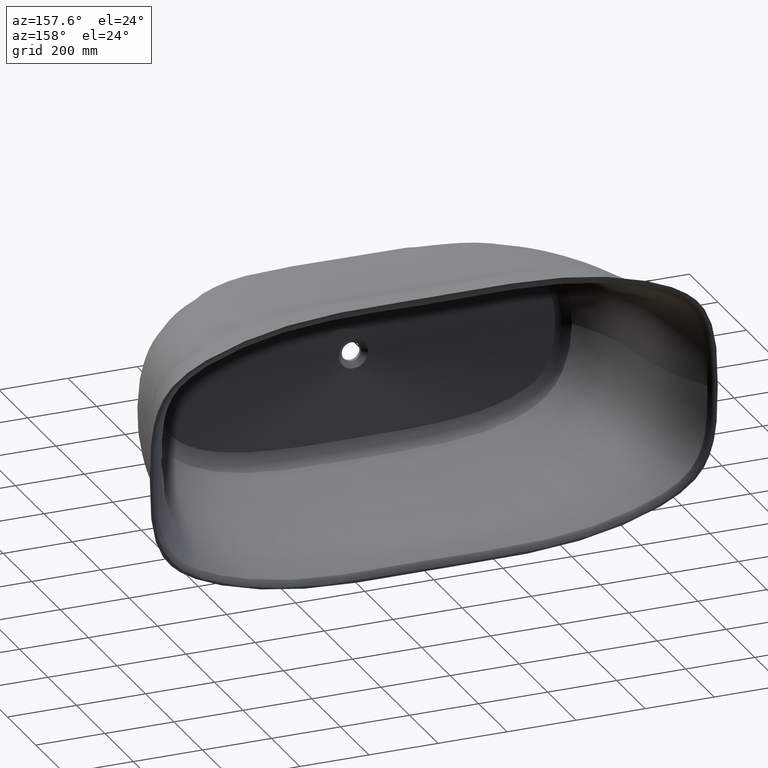
[diagram: clean part render]
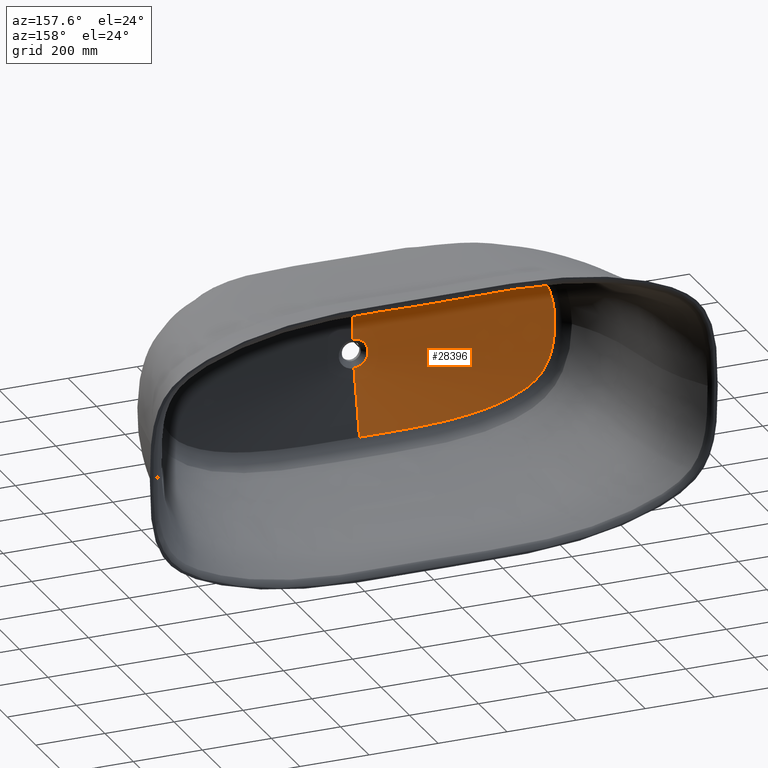
[diagram: same view with one face highlighted and labeled with its STEP entity id]
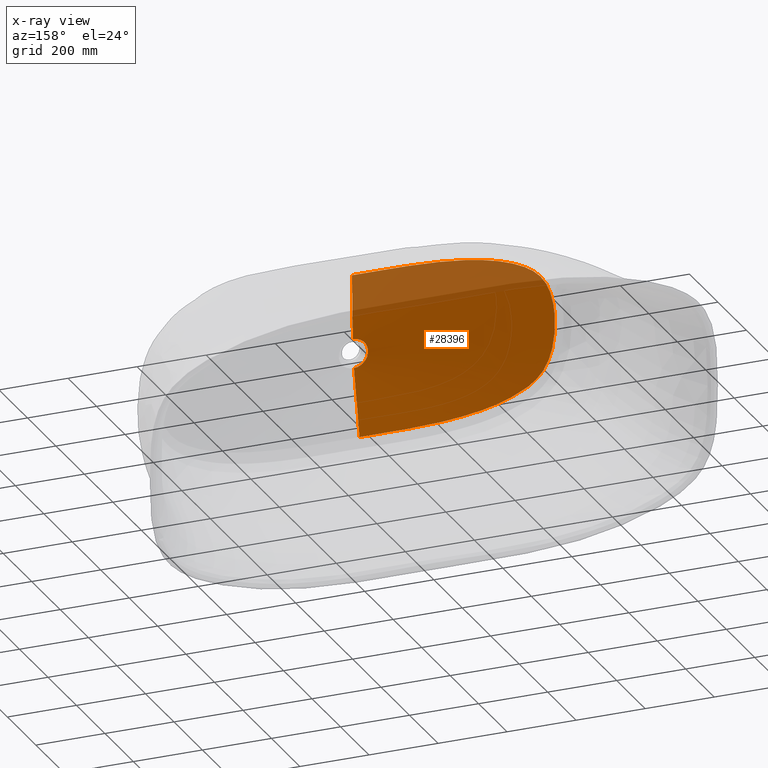
[diagram: x-ray of the same camera — body ghosted, the highlighted face saturated]
A machine part, auxiliary view. The second image highlights one B-rep face of the part: STEP entity #28396.
The next image is the same camera in x-ray: the body ghosted, the highlighted face saturated — about 23% of this face is hidden behind the body in this view.
In plain terms, the highlighted face is a freeform B-spline surface patch.
Its self-contained STEP definition (entity closure, byte-faithful):
#76 = CARTESIAN_POINT ( 'NONE',  ( -507.8532928624309761, -544.9999999999997726, 202.0993180883444040 ) ) ;
#104 = CARTESIAN_POINT ( 'NONE',  ( 9.283812260727838606, -565.0000000000000000, -41.48636797525795572 ) ) ;
#205 = CARTESIAN_POINT ( 'NONE',  ( -537.4729384907305985, -544.9999999999998863, 178.7166182877508618 ) ) ;
#231 = CARTESIAN_POINT ( 'NONE',  ( 406.2534690100370085, -544.9999999999998863, -244.8715526777782827 ) ) ;
#254 = CARTESIAN_POINT ( 'NONE',  ( -418.6344770811440412, -546.9699076675484548, 207.0764834624472712 ) ) ;
#328 = CARTESIAN_POINT ( 'NONE',  ( -38.26767443001622837, -565.0000000000000000, 18.52261269488268169 ) ) ;
#354 = CARTESIAN_POINT ( 'NONE',  ( 224.0525714203066059, -544.9999999999998863, -270.7056816240100829 ) ) ;
#376 = CARTESIAN_POINT ( 'NONE',  ( -491.7214078258226095, -546.4058620248987381, 177.1403243733258819 ) ) ;
#417 = EDGE_CURVE ( 'NONE', #31569, #11450, #8866, .T. ) ;
#450 = CARTESIAN_POINT ( 'NONE',  ( -448.9709655141597295, -544.9999999999998863, 231.1368846432837358 ) ) ;
#475 = CARTESIAN_POINT ( 'NONE',  ( 268.3752140727872870, -544.9999999999998863, -267.5611796369515218 ) ) ;
#569 = CARTESIAN_POINT ( 'NONE',  ( -563.0932699548558276, -544.9999999999998863, 148.0939859178455720 ) ) ;
#595 = CARTESIAN_POINT ( 'NONE',  ( 360.5056906717086918, -544.9999999999998863, -255.3696913990008852 ) ) ;
#686 = CARTESIAN_POINT ( 'NONE',  ( -588.0916026020331628, -544.9999999999998863, -91.93979672018187443 ) ) ;
#710 = CARTESIAN_POINT ( 'NONE',  ( 42.47964495309389577, -565.0000000000000000, -1.345727021679400170 ) ) ;
#803 = CARTESIAN_POINT ( 'NONE',  ( -551.0431931894221407, -545.0000000000000000, -164.3119708472827938 ) ) ;
#827 = CARTESIAN_POINT ( 'NONE',  ( 39.65898219028044736, -564.9999999999998863, -15.29281390287207287 ) ) ;
#917 = CARTESIAN_POINT ( 'NONE',  ( -42.49379011540796824, -565.0000000000000000, 0.7251708709900781535 ) ) ;
#942 = CARTESIAN_POINT ( 'NONE',  ( 600.3800991504264175, -544.9999999999997726, 4.530365495627787453 ) ) ;
#1034 = CARTESIAN_POINT ( 'NONE',  ( -600.3191977859860344, -545.0000000000000000, -6.829523642891070168 ) ) ;
#1059 = CARTESIAN_POINT ( 'NONE',  ( 39.92430343477404620, -564.9999999999998863, -14.57274761548266184 ) ) ;
#1147 = CARTESIAN_POINT ( 'NONE',  ( -321.9309363643801589, -547.4999714961761583, -227.3053435251155747 ) ) ;
#1155 = CARTESIAN_POINT ( 'NONE',  ( -38.90525411499898212, -565.0000000000000000, -17.10822289307071742 ) ) ;
#1178 = CARTESIAN_POINT ( 'NONE',  ( 36.31038340338522374, -564.9999999999997726, 22.08752123479618845 ) ) ;
#1267 = CARTESIAN_POINT ( 'NONE',  ( -125.7080707213066546, -547.9244562606102136, -239.0401578778710814 ) ) ;
#1273 = CARTESIAN_POINT ( 'NONE',  ( -26.34239334091757812, -565.0000000000000000, -33.35496558111666587 ) ) ;
#1296 = CARTESIAN_POINT ( 'NONE',  ( 29.40502744335971386, -565.0000000000000000, 30.69832282460147255 ) ) ;
#1384 = CARTESIAN_POINT ( 'NONE',  ( -76.42312548685798390, -547.9381255913414179, -239.2699712721316416 ) ) ;
#1390 = CARTESIAN_POINT ( 'NONE',  ( -398.2420963417719122, -545.0000000000001137, -247.0532246121144624 ) ) ;
#1412 = CARTESIAN_POINT ( 'NONE',  ( 368.9252518230629789, -544.9999999999998863, 253.9345816040704449 ) ) ;
#1504 = CARTESIAN_POINT ( 'NONE',  ( -298.8783053964556302, -544.9999999999997726, -264.5874067996858230 ) ) ;
#1610 = CARTESIAN_POINT ( 'NONE',  ( -346.1435053333811425, -547.3875210373487334, -223.5848258214882378 ) ) ;
#1616 = CARTESIAN_POINT ( 'NONE',  ( -24.67032072848083146, -564.9999999999997726, -34.61480137456664607 ) ) ;
#1725 = CARTESIAN_POINT ( 'NONE',  ( -546.6075866265123295, -545.9619517733615339, -126.5987540204315565 ) ) ;
#1732 = CARTESIAN_POINT ( 'NONE',  ( -271.8162548953060877, -545.0000000000001137, -267.3948846997872124 ) ) ;
#1845 = CARTESIAN_POINT ( 'NONE',  ( -541.9891174673459773, -545.9894231816408592, -133.5830136203143468 ) ) ;
#1966 = CARTESIAN_POINT ( 'NONE',  ( -527.2829842782867900, -546.0977703261870602, -150.8687717614686790 ) ) ;
#2016 = CARTESIAN_POINT ( 'NONE',  ( 431.5245974188466107, -544.9999999999998863, 237.2734241343123927 ) ) ;
#2134 = CARTESIAN_POINT ( 'NONE',  ( 386.1327819677264870, -544.9999999999998863, 249.9511554189010667 ) ) ;
#2204 = CARTESIAN_POINT ( 'NONE',  ( -570.6800513804049615, -545.8767460562331735, 60.91287793229982128 ) ) ;
#2258 = CARTESIAN_POINT ( 'NONE',  ( -177.3872856216366642, -544.9999999999998863, 272.2148888966985965 ) ) ;
#2382 = CARTESIAN_POINT ( 'NONE',  ( -21.65730394401707670, -565.0000000000001137, 36.57597011874747039 ) ) ;
#2409 = CARTESIAN_POINT ( 'NONE',  ( 2.976575138964300926, -565.0000000000000000, -42.39576043498365010 ) ) ;
#2510 = CARTESIAN_POINT ( 'NONE',  ( -7.289441415317120310, -565.0000000000000000, 41.87848784401570157 ) ) ;
#2538 = CARTESIAN_POINT ( 'NONE',  ( -0.7569570602503029599, -565.0000000000001137, -42.49986538608810349 ) ) ;
#2596 = CARTESIAN_POINT ( 'NONE',  ( 1.630502404737210975, -565.0000000000000000, 42.46871156402247749 ) ) ;
#2635 = CARTESIAN_POINT ( 'NONE',  ( 6.015596135129710476, -565.0000000000000000, 42.07223675486527981 ) ) ;
#2763 = CARTESIAN_POINT ( 'NONE',  ( -364.8010054073777155, -544.9999999999998863, 254.5357194683774935 ) ) ;
#2789 = CARTESIAN_POINT ( 'NONE',  ( 19.77187796749259263, -565.0000000000001137, -37.63866834399709660 ) ) ;
#2811 = CARTESIAN_POINT ( 'NONE',  ( -169.8516449763276626, -547.9002450476460808, 238.4342986230580550 ) ) ;
#2885 = CARTESIAN_POINT ( 'NONE',  ( -26.37858563654202371, -565.0000000000000000, 33.34297478192603847 ) ) ;
#2914 = CARTESIAN_POINT ( 'NONE',  ( 285.7293518315335064, -544.9999999999998863, -266.0916568798211301 ) ) ;
#3014 = CARTESIAN_POINT ( 'NONE',  ( -456.3399685117489071, -544.9999999999998863, 228.2172895171377149 ) ) ;
#3040 = CARTESIAN_POINT ( 'NONE',  ( 345.2115851083992766, -544.9999999999997726, -258.2445799839595111 ) ) ;
#3063 = CARTESIAN_POINT ( 'NONE',  ( -195.6619693790238159, -547.8701226477249975, 237.7297146273914450 ) ) ;
#3137 = CARTESIAN_POINT ( 'NONE',  ( -41.75030458278217083, -564.9999999999998863, 7.952170983507195423 ) ) ;
#3164 = CARTESIAN_POINT ( 'NONE',  ( 370.0813563903546992, -544.9999999999998863, -253.5279766508817829 ) ) ;
#3186 = CARTESIAN_POINT ( 'NONE',  ( -311.1327794538498779, -547.5509689367459032, 228.7907145736678842 ) ) ;
#3259 = CARTESIAN_POINT ( 'NONE',  ( -28.00237800667010291, -565.0000000000000000, 31.97117047039765225 ) ) ;
#3284 = CARTESIAN_POINT ( 'NONE',  ( 28.74052572129263439, -565.0000000000001137, -31.32167586170425722 ) ) ;
#3307 = CARTESIAN_POINT ( 'NONE',  ( -14.58434869562291247, -547.9327650324615888, 239.0355877143053362 ) ) ;
#3377 = CARTESIAN_POINT ( 'NONE',  ( -39.92430343477378329, -564.9999999999998863, 14.57274761548335107 ) ) ;
#3403 = CARTESIAN_POINT ( 'NONE',  ( 42.30230897192403461, -565.0000000000000000, -4.428141959772602831 ) ) ;
#3495 = CARTESIAN_POINT ( 'NONE',  ( -598.7905360226266112, -545.0000000000000000, -34.89251959035473760 ) ) ;
#3519 = CARTESIAN_POINT ( 'NONE',  ( 582.0340768715378772, -544.9999999999996589, 110.3413224422753700 ) ) ;
#3529 = DIRECTION ( 'NONE',  ( 0.0000000000000000000, 0.0000000000000000000, 1.000000000000000000 ) ) ;
#3574 = EDGE_LOOP ( 'NONE', ( #6253, #21058, #9227, #36011, #24532, #32085 ) ) ;
#3615 = CARTESIAN_POINT ( 'NONE',  ( -594.2566574707010432, -545.0000000000000000, -67.45459405628123761 ) ) ;
#3639 = CARTESIAN_POINT ( 'NONE',  ( 42.42205652601133181, -565.0000000000001137, 2.836081792056698525 ) ) ;
#3731 = CARTESIAN_POINT ( 'NONE',  ( -599.6228629926694111, -545.0000000000001137, -25.26714172680226156 ) ) ;
#3755 = CARTESIAN_POINT ( 'NONE',  ( 563.1948364737899055, -544.9999999999997726, -147.7766733195678910 ) ) ;
#3852 = CARTESIAN_POINT ( 'NONE',  ( -599.6823159204351441, -545.0000000000005684, 25.94752953610628765 ) ) ;
#3867 = CIRCLE ( 'NONE', #16247, 42.50000000000001421 ) ;
#3878 = CARTESIAN_POINT ( 'NONE',  ( 38.26767443001687496, -565.0000000000000000, -18.52261269488143824 ) ) ;
#3966 = CARTESIAN_POINT ( 'NONE',  ( -362.2232955290973564, -547.3049480766660508, -220.6800782790446647 ) ) ;
#3974 = CARTESIAN_POINT ( 'NONE',  ( -38.41465604001026435, -565.0000000000000000, -18.21507607946124097 ) ) ;
#3999 = CARTESIAN_POINT ( 'NONE',  ( 550.7199383930742442, -544.9999999999998863, 164.6630767075787389 ) ) ;
#4087 = CARTESIAN_POINT ( 'NONE',  ( -142.1359054864076370, -547.9162736758004257, -238.8748518938969312 ) ) ;
#4093 = CARTESIAN_POINT ( 'NONE',  ( -293.1000536093470146, -544.9999999999998863, -265.2106422714030032 ) ) ;
#4115 = CARTESIAN_POINT ( 'NONE',  ( 275.5904908055361489, -544.9999999999997726, 267.0670158753854935 ) ) ;
#4201 = CARTESIAN_POINT ( 'NONE',  ( -418.0315964630924555, -546.9716385985357192, -207.2851944667523014 ) ) ;
#4207 = CARTESIAN_POINT ( 'NONE',  ( -11.16586711520551134, -564.9999999999997726, -41.00716895424518071 ) ) ;
#4230 = CARTESIAN_POINT ( 'NONE',  ( 32.66375701053190284, -564.9999999999998863, 27.20755917413828584 ) ) ;
#4314 = CARTESIAN_POINT ( 'NONE',  ( -199.6260051558765269, -547.8535934306803483, -237.3965354433396726 ) ) ;
#4320 = CARTESIAN_POINT ( 'NONE',  ( -25.64354764069754467, -565.0000000000000000, -33.89731481578413508 ) ) ;
#4433 = CARTESIAN_POINT ( 'NONE',  ( -118.8594377959498303, -545.0000000000000000, -273.0201342432175124 ) ) ;
#4550 = CARTESIAN_POINT ( 'NONE',  ( -196.3559407775439354, -544.9999999999996589, -271.6615825537427895 ) ) ;
#4662 = CARTESIAN_POINT ( 'NONE',  ( -575.9196357240356292, -545.8711745730823850, -13.44177006347620029 ) ) ;
#4780 = CARTESIAN_POINT ( 'NONE',  ( -565.3355276464416193, -545.8878070605093171, -82.84313264217288975 ) ) ;
#4831 = CARTESIAN_POINT ( 'NONE',  ( 38.90525411499869080, -565.0000000000000000, 17.10822289307139599 ) ) ;
#4952 = CARTESIAN_POINT ( 'NONE',  ( 515.9993335665651557, -544.9999999999998863, 196.3527609822338036 ) ) ;
#5075 = CARTESIAN_POINT ( 'NONE',  ( -9.283812260727726695, -565.0000000000000000, 41.48636797525796993 ) ) ;
#5201 = CARTESIAN_POINT ( 'NONE',  ( 1.542815525459145354, -564.9999999999997726, 42.47207812877726241 ) ) ;
#5252 = CARTESIAN_POINT ( 'NONE',  ( -535.3937438065235028, -546.0346907806779200, 142.0912630748386789 ) ) ;
#5331 = CARTESIAN_POINT ( 'NONE',  ( 15.84942754901590867, -564.9999999999997726, 39.45223454403922148 ) ) ;
#5442 = EDGE_CURVE ( 'NONE', #17120, #31569, #36145, .T. ) ;
#5458 = CARTESIAN_POINT ( 'NONE',  ( 3.580323156115547079, -564.9999999999997726, 42.36641170695037317 ) ) ;
#5581 = CARTESIAN_POINT ( 'NONE',  ( 11.16586711520530706, -565.0000000000000000, 41.00716895424525887 ) ) ;
#5608 = CARTESIAN_POINT ( 'NONE',  ( 24.45091935762997437, -565.0000000000001137, -34.76256166552289528 ) ) ;
#5704 = CARTESIAN_POINT ( 'NONE',  ( -36.23880452082588732, -565.0000000000000000, 22.20570611291755014 ) ) ;
#5731 = CARTESIAN_POINT ( 'NONE',  ( 502.1847400157421930, -544.9999999999998863, -205.5044473568464696 ) ) ;
#5830 = CARTESIAN_POINT ( 'NONE',  ( -40.52358937914891612, -564.9999999999997726, 12.86453995169087250 ) ) ;
#5857 = CARTESIAN_POINT ( 'NONE',  ( 36.42435553575705143, -565.0000000000000000, -21.90679665387271413 ) ) ;
#5880 = CARTESIAN_POINT ( 'NONE',  ( -361.9836376460052634, -547.3109176580687745, 220.8086290281583501 ) ) ;
#5952 = CARTESIAN_POINT ( 'NONE',  ( -27.41248038596416947, -565.0000000000000000, 32.48302121638331386 ) ) ;
#5978 = CARTESIAN_POINT ( 'NONE',  ( 415.7702610245534061, -544.9999999999998863, -242.2594410266840157 ) ) ;
#6001 = CARTESIAN_POINT ( 'NONE',  ( -505.7216417048288122, -546.2841405692948911, 168.3023802091434220 ) ) ;
#6070 = CARTESIAN_POINT ( 'NONE',  ( -29.76665281915774486, -564.9999999999997726, 30.35427607155309104 ) ) ;
#6093 = CARTESIAN_POINT ( 'NONE',  ( 497.0811455948976914, -544.9999999999997726, -208.5496718506472575 ) ) ;
#6116 = CARTESIAN_POINT ( 'NONE',  ( -452.8628749147692361, -546.7246794843158568, 195.3465329452526760 ) ) ;
#6185 = CARTESIAN_POINT ( 'NONE',  ( -589.3401811589098998, -544.9999999999998863, 88.03248416326624692 ) ) ;
#6210 = CARTESIAN_POINT ( 'NONE',  ( 40.52436527174739211, -564.9999999999998863, -12.86193370607260356 ) ) ;
#6253 = ORIENTED_EDGE ( 'NONE', *, *, #26962, .T. ) ;
#6304 = CARTESIAN_POINT ( 'NONE',  ( -36.77454642392660134, -564.9999999999997726, -21.30816413713477075 ) ) ;
#6328 = CARTESIAN_POINT ( 'NONE',  ( 39.65715433995398342, -564.9999999999998863, 15.30868588973187094 ) ) ;
#6357 = B_SPLINE_CURVE_WITH_KNOTS ( 'NONE', 3,
 ( #19053, #8188, #11001, #10747, #30311, #13569, #27619, #16371, #35940, #5252, #24820, #11626, #8812, #31065, #8692, #25685, #30942, #6001, #14199, #11128, #376, #20053, #25321, #33763, #8568, #25447, #17005, #6116, #30692, #19930, #22622, #8929, #254, #13951, #33510, #5880, #19554, #14322, #3186, #30818, #28247, #22374, #11256, #3063, #2811, #33883, #11507, #28122, #17125, #22743, #27999, #14077, #3307, #14441, #25567, #36318 ),
 .UNSPECIFIED., .F., .F.,
 ( 4, 2, 2, 2, 2, 2, 2, 2, 2, 2, 2, 2, 2, 2, 2, 2, 2, 2, 2, 2, 2, 2, 2, 2, 2, 2, 2, 4 ),
 ( 0.09493865988636265851, 0.1148142463666799451, 0.1346898328469972317, 0.1446276260871559582, 0.1495965227072353076, 0.1545654193273146848, 0.1744410058076324432, 0.1843787990477913086, 0.1893476956678706025, 0.1943165922879498964, 0.2141921787682668499, 0.2340677652485837756, 0.2440055584887422246, 0.2489744551088214353, 0.2539433517289006459, 0.2738189382092176549, 0.2936945246895347195, 0.3334456976501687375, 0.3731968706108028666, 0.4129480435714368847, 0.4526992165320710138, 0.4924503894927050318, 0.5719527354139732900, 0.6117039083746075301, 0.6514550813352416592, 0.6912062542958757883, 0.7110818407761928528, 0.7309574272565099173 ),
 .UNSPECIFIED. ) ;
#6421 = CARTESIAN_POINT ( 'NONE',  ( -539.2936395970696140, -544.9999999999998863, -177.2702544315149567 ) ) ;
#6446 = CARTESIAN_POINT ( 'NONE',  ( 599.8303139988639714, -544.9999999999998863, -21.09572566303808827 ) ) ;
#6542 = CARTESIAN_POINT ( 'NONE',  ( -41.62780420487724342, -564.9999999999997726, -8.712481314938621324 ) ) ;
#6565 = CARTESIAN_POINT ( 'NONE',  ( 597.0561207041866965, -544.9999999999997726, -50.24990152184184211 ) ) ;
#6663 = CARTESIAN_POINT ( 'NONE',  ( -42.49672181614892708, -565.0000000000000000, 0.5322720115841307331 ) ) ;
#6687 = CARTESIAN_POINT ( 'NONE',  ( 37.48132829791509124, -565.0000000000001137, -20.03640895217263562 ) ) ;
#6772 = CARTESIAN_POINT ( 'NONE',  ( -490.6036598422490442, -546.4141732887596845, -177.7165860520630645 ) ) ;
#6778 = CARTESIAN_POINT ( 'NONE',  ( -37.78221267254069460, -564.9999999999998863, -19.49063029227630395 ) ) ;
#6800 = CARTESIAN_POINT ( 'NONE',  ( 17.51949086120353627, -564.9999999999996589, 38.72330132986834883 ) ) ;
#6889 = CARTESIAN_POINT ( 'NONE',  ( -445.5454184940155642, -546.7782240240604779, -198.1401878405097250 ) ) ;
#6896 = CARTESIAN_POINT ( 'NONE',  ( -211.8480423112455071, -544.9999999999996589, -271.1185387294096927 ) ) ;
#6918 = CARTESIAN_POINT ( 'NONE',  ( 34.85851594059609937, -564.9999999999998863, 24.34018150319627338 ) ) ;
#7010 = CARTESIAN_POINT ( 'NONE',  ( -6.015596135129857025, -564.9999999999997726, -42.07223675486526560 ) ) ;
#7034 = CARTESIAN_POINT ( 'NONE',  ( 39.29078293155634327, -565.0000000000000000, 16.21759906097744519 ) ) ;
#7122 = CARTESIAN_POINT ( 'NONE',  ( -147.9100481013331603, -545.0000000000000000, -272.8655220812248672 ) ) ;
#7231 = CARTESIAN_POINT ( 'NONE',  ( -1.630502404737337541, -565.0000000000000000, -42.46871156402247749 ) ) ;
#7230 = CARTESIAN_POINT ( 'NONE',  ( -410.1103722645319749, -547.0230725319581779, -209.5510365322728603 ) ) ;
#7236 = CARTESIAN_POINT ( 'NONE',  ( -33.58030404411860559, -564.9999999999997726, -26.05104126642613593 ) ) ;
#7356 = CARTESIAN_POINT ( 'NONE',  ( -29.40502744336056296, -565.0000000000000000, -30.69832282460063766 ) ) ;
#7467 = CARTESIAN_POINT ( 'NONE',  ( -555.5353642130987737, -545.9182850460490499, -110.1931981044356661 ) ) ;
#7587 = CARTESIAN_POINT ( 'NONE',  ( -521.2285120355442132, -546.1487987797744381, -156.4474746675332995 ) ) ;
#7637 = CARTESIAN_POINT ( 'NONE',  ( 494.4985965754647737, -545.0000000000000000, 210.3035787961516689 ) ) ;
#7758 = CARTESIAN_POINT ( 'NONE',  ( 453.7368736029893626, -545.0000000000000000, 229.3928197289904745 ) ) ;
#7826 = CARTESIAN_POINT ( 'NONE',  ( -575.0582153665386613, -545.8717380764799145, 28.14404605397905001 ) ) ;
#7879 = CARTESIAN_POINT ( 'NONE',  ( 26.68741399935548486, -544.9999999999997726, 272.8211208598857525 ) ) ;
#8011 = CARTESIAN_POINT ( 'NONE',  ( -23.71352635074158854, -565.0000000000000000, 35.27239043970168808 ) ) ;
#8037 = CARTESIAN_POINT ( 'NONE',  ( 4.603536504284480912, -565.0000000000000000, -42.27969308369014101 ) ) ;
#8100 = CARTESIAN_POINT ( 'NONE',  ( -1.630502404737337541, -565.0000000000000000, -42.46871156402247749 ) ) ;
#8140 = CARTESIAN_POINT ( 'NONE',  ( -255.6893114913937382, -544.9999999999998863, 268.6343597897533186 ) ) ;
#8188 = CARTESIAN_POINT ( 'NONE',  ( -559.9864090571942370, -545.9025655700736479, 99.29292660080908206 ) ) ;
#8268 = CARTESIAN_POINT ( 'NONE',  ( -13.17553364179080333, -564.9999999999998863, 40.41807450151669201 ) ) ;
#8393 = CARTESIAN_POINT ( 'NONE',  ( 10.13489326650644173, -565.0000000000000000, 41.28636724937173597 ) ) ;
#8421 = CARTESIAN_POINT ( 'NONE',  ( 28.00237800667044397, -565.0000000000000000, -31.97117047039736804 ) ) ;
#8518 = CARTESIAN_POINT ( 'NONE',  ( -541.8015520246068490, -544.9999999999998863, 174.5602896130857573 ) ) ;
#8545 = CARTESIAN_POINT ( 'NONE',  ( 508.9010484973698567, -544.9999999999998863, -201.2782211576761711 ) ) ;
#8568 = CARTESIAN_POINT ( 'NONE',  ( -462.0714898678127724, -546.6526228916379750, 191.6135184004435530 ) ) ;
#8644 = CARTESIAN_POINT ( 'NONE',  ( -41.12414671443197278, -564.9999999999998863, 10.84725053977063602 ) ) ;
#8670 = CARTESIAN_POINT ( 'NONE',  ( 17.63153233179037827, -565.0000000000001137, -38.72325044630739654 ) ) ;
#8692 = CARTESIAN_POINT ( 'NONE',  ( -513.8153987298851462, -546.2135767355780445, 162.4713250799117645 ) ) ;
#8765 = CARTESIAN_POINT ( 'NONE',  ( -35.99118409956985687, -565.0000000000000000, 22.60362032437651791 ) ) ;
#8788 = CARTESIAN_POINT ( 'NONE',  ( 31.48698544639352193, -565.0000000000000000, -28.54584308451656582 ) ) ;
#8812 = CARTESIAN_POINT ( 'NONE',  ( -524.0224916712417098, -546.1253356585336860, 154.0679117323599314 ) ) ;
#8866 = CIRCLE ( 'NONE', #30567, 42.50000000000001421 ) ;
#8882 = CARTESIAN_POINT ( 'NONE',  ( -30.77480897737335042, -564.9999999999997726, 29.31665494532694893 ) ) ;
#8907 = CARTESIAN_POINT ( 'NONE',  ( 31.77237089398929371, -565.0000000000000000, -28.22948618041152358 ) ) ;
#8929 = CARTESIAN_POINT ( 'NONE',  ( -424.8851203563092440, -546.9279379431042116, 205.1757219283857125 ) ) ;
#8998 = CARTESIAN_POINT ( 'NONE',  ( -546.6220978566277608, -545.0000000000000000, 169.4374300717030337 ) ) ;
#9023 = CARTESIAN_POINT ( 'NONE',  ( 600.1463568587879536, -544.9999999999998863, -13.24746681250835145 ) ) ;
#9113 = CARTESIAN_POINT ( 'NONE',  ( -36.54409247317605747, -564.9999999999998863, -21.69861089335382331 ) ) ;
#9139 = CARTESIAN_POINT ( 'NONE',  ( 42.43635878677890361, -565.0000000000000000, -2.473175657512223680 ) ) ;
#9227 = ORIENTED_EDGE ( 'NONE', *, *, #34499, .T. ) ;
#9234 = CARTESIAN_POINT ( 'NONE',  ( -40.55909962241339883, -564.9999999999997726, -12.70432884258575967 ) ) ;
#9259 = CARTESIAN_POINT ( 'NONE',  ( 587.0204151776633807, -544.9999999999997726, -96.00093684177684850 ) ) ;
#9352 = CARTESIAN_POINT ( 'NONE',  ( -42.43635878677886808, -565.0000000000000000, 2.473175657513026149 ) ) ;
#9376 = CARTESIAN_POINT ( 'NONE',  ( 42.00039139046921832, -565.0000000000001137, 6.614167099024782281 ) ) ;
#9389 = CARTESIAN_POINT ( 'NONE',  ( 0.0000000000000000000, -565.0000000000000000, 0.0000000000000000000 ) ) ;
#9472 = CARTESIAN_POINT ( 'NONE',  ( -583.9247191111678603, -544.9999999999997726, -105.0210336379520157 ) ) ;
#9496 = CARTESIAN_POINT ( 'NONE',  ( 42.30021591721428109, -565.0000000000001137, 4.195004263755363283 ) ) ;
#9583 = CARTESIAN_POINT ( 'NONE',  ( -166.7763849673646348, -547.8949568504586978, -238.3918364508692207 ) ) ;
#9589 = CARTESIAN_POINT ( 'NONE',  ( -42.00039139046943149, -564.9999999999998863, -6.614167099023227969 ) ) ;
#9613 = CARTESIAN_POINT ( 'NONE',  ( 17.00492091701891084, -564.9999999999996589, 38.95000431619889980 ) ) ;
#9707 = CARTESIAN_POINT ( 'NONE',  ( -17.64799698608059586, -564.9999999999997726, -38.66446293184018401 ) ) ;
#9730 = CARTESIAN_POINT ( 'NONE',  ( 27.04141030047316718, -565.0000000000002274, 32.78786265214693429 ) ) ;
#9815 = CARTESIAN_POINT ( 'NONE',  ( -486.9897062107276042, -546.4450898597337982, -179.7117985789050181 ) ) ;
#9821 = CARTESIAN_POINT ( 'NONE',  ( -4.416777710670206858, -564.9999999999998863, -42.29892450747938426 ) ) ;
#9844 = CARTESIAN_POINT ( 'NONE',  ( 519.2131551501097420, -544.9999999999998863, 194.0127741851130736 ) ) ;
#9928 = CARTESIAN_POINT ( 'NONE',  ( -394.2137813221317515, -547.1223406040252257, -213.7115539230895820 ) ) ;
#9934 = CARTESIAN_POINT ( 'NONE',  ( -72.34110909256867217, -545.0000000000000000, -273.0690133402819697 ) ) ;
#10043 = CARTESIAN_POINT ( 'NONE',  ( -10.70691523155910829, -547.9319882033653357, -239.0317121700435905 ) ) ;
#10042 = CARTESIAN_POINT ( 'NONE',  ( -435.7675710353617546, -546.8492153408125205, -201.5819920480609824 ) ) ;
#10048 = CARTESIAN_POINT ( 'NONE',  ( -30.64289514929233249, -564.9999999999998863, -29.45511373470412053 ) ) ;
#10158 = CARTESIAN_POINT ( 'NONE',  ( -538.2988709756314165, -546.0134531216730238, -138.6179391366232778 ) ) ;
#10166 = CARTESIAN_POINT ( 'NONE',  ( -178.9065776662511098, -544.9999999999997726, -272.2455820928405501 ) ) ;
#10278 = CARTESIAN_POINT ( 'NONE',  ( -573.0737312916877499, -545.8735716449555184, -46.38021885779811981 ) ) ;
#10447 = EDGE_CURVE ( 'NONE', #13677, #25524, #6357, .T. ) ;
#10451 = CARTESIAN_POINT ( 'NONE',  ( 26.76239402191229644, -565.0000000000001137, 33.01601758538604514 ) ) ;
#10519 = CARTESIAN_POINT ( 'NONE',  ( -518.0748225901002115, -546.1759872386643337, -159.1103331141221133 ) ) ;
#10570 = CARTESIAN_POINT ( 'NONE',  ( 23.42563939476918478, -564.9999999999997726, 35.46149394488212891 ) ) ;
#10596 = CARTESIAN_POINT ( 'NONE',  ( 0.7000296251439520612, -565.0000000000001137, -42.51246700758899522 ) ) ;
#10642 = CARTESIAN_POINT ( 'NONE',  ( -563.4909889601731265, -545.8923403434457668, 89.03277950434483046 ) ) ;
#10649 = CARTESIAN_POINT ( 'NONE',  ( -2.931453143797799310, -565.0000000000000000, -42.41876412671255281 ) ) ;
#10695 = CARTESIAN_POINT ( 'NONE',  ( -15.43557126902914511, -564.9999999999998863, 39.61646896888309755 ) ) ;
#10747 = CARTESIAN_POINT ( 'NONE',  ( -551.9722388160383844, -545.9338738105233233, 117.3758994499873580 ) ) ;
#10823 = CARTESIAN_POINT ( 'NONE',  ( -22.68341901011852713, -565.0000000000000000, 35.95242557471549816 ) ) ;
#10951 = CARTESIAN_POINT ( 'NONE',  ( 214.9552121690076092, -544.9999999999998863, 270.9851273110243142 ) ) ;
#11001 = CARTESIAN_POINT ( 'NONE',  ( -557.5487346347061930, -545.9106791913030747, 105.4414228060047520 ) ) ;
#11080 = CARTESIAN_POINT ( 'NONE',  ( -11.23673443782393200, -564.9999999999998863, 41.02364848340464931 ) ) ;
#11128 = CARTESIAN_POINT ( 'NONE',  ( -497.4175077342031841, -546.3565131282191487, 173.7915672920870236 ) ) ;
#11203 = CARTESIAN_POINT ( 'NONE',  ( 181.6300366487286624, -544.9999999999998863, 272.1781580202336954 ) ) ;
#11232 = CARTESIAN_POINT ( 'NONE',  ( 33.58073295716292250, -564.9999999999997726, -26.06732349846350871 ) ) ;
#11256 = CARTESIAN_POINT ( 'NONE',  ( -234.2686564930117186, -547.7934107566437660, 235.7440155035274358 ) ) ;
#11331 = CARTESIAN_POINT ( 'NONE',  ( -499.2166888221643717, -544.9999999999998863, 207.2773677449303307 ) ) ;
#11360 = CARTESIAN_POINT ( 'NONE',  ( 543.7416355819144655, -544.9999999999998863, -172.6401605130575660 ) ) ;
#11450 = VERTEX_POINT ( 'NONE', #16245 ) ;
#11459 = CARTESIAN_POINT ( 'NONE',  ( -24.45091935762970081, -565.0000000000000000, 34.76256166552309423 ) ) ;
#11479 = CARTESIAN_POINT ( 'NONE',  ( -10.70691523155910829, -547.9319882033653357, -239.0317121700435905 ) ) ;
#11485 = CARTESIAN_POINT ( 'NONE',  ( 32.75534530422218182, -564.9999999999998863, -27.08627118273033219 ) ) ;
#11507 = CARTESIAN_POINT ( 'NONE',  ( -118.1426613157979659, -547.9302148837442701, 239.0894803347763684 ) ) ;
#11579 = CARTESIAN_POINT ( 'NONE',  ( -550.5621177337135350, -544.9999999999998863, 164.8446467277922807 ) ) ;
#11603 = CARTESIAN_POINT ( 'NONE',  ( 193.1279695842185333, -544.9999999999998863, -271.8318419332360349 ) ) ;
#11626 = CARTESIAN_POINT ( 'NONE',  ( -528.8011152485283901, -546.0848021638357750, 149.5214418051460257 ) ) ;
#11694 = CARTESIAN_POINT ( 'NONE',  ( -553.1221970234328182, -545.0000000000000000, 161.7484769125621540 ) ) ;
#11719 = CARTESIAN_POINT ( 'NONE',  ( 23.71352635074208237, -565.0000000000001137, -35.27239043970136834 ) ) ;
#11812 = CARTESIAN_POINT ( 'NONE',  ( -572.1988907484322908, -544.9999999999998863, 132.7071563772329341 ) ) ;
#11838 = CARTESIAN_POINT ( 'NONE',  ( 40.92270870475730504, -564.9999999999997726, 11.47386738780316406 ) ) ;
#11933 = CARTESIAN_POINT ( 'NONE',  ( -545.9113380374055851, -545.0000000000000000, -170.1393335187345599 ) ) ;
#11958 = CARTESIAN_POINT ( 'NONE',  ( 598.9542460773093353, -544.9999999999998863, -34.75812401678850705 ) ) ;
#12051 = CARTESIAN_POINT ( 'NONE',  ( -42.48987212792200552, -564.9999999999998863, -1.178790536055315030 ) ) ;
#12076 = CARTESIAN_POINT ( 'NONE',  ( 591.2864885779855513, -544.9999999999998863, -80.91859397481533733 ) ) ;
#12168 = CARTESIAN_POINT ( 'NONE',  ( -600.1624530626525029, -544.9999999999997726, -13.64458066499929600 ) ) ;
#12194 = CARTESIAN_POINT ( 'NONE',  ( 583.7480651156042768, -544.9999999999998863, -105.3774586253231718 ) ) ;
#12289 = CARTESIAN_POINT ( 'NONE',  ( -39.74898447271340984, -565.0000000000000000, -15.08086893876580881 ) ) ;
#12313 = CARTESIAN_POINT ( 'NONE',  ( 591.2348298523747872, -544.9999999999998863, 80.13542979965956192 ) ) ;
#12403 = CARTESIAN_POINT ( 'NONE',  ( -511.5159860922120743, -546.2329375695481986, -164.1845195071488490 ) ) ;
#12410 = CARTESIAN_POINT ( 'NONE',  ( -37.11428819880244845, -564.9999999999997726, -20.71082361814233153 ) ) ;
#12434 = CARTESIAN_POINT ( 'NONE',  ( 36.54409247317570220, -564.9999999999997726, 21.69861089335443083 ) ) ;
#12520 = CARTESIAN_POINT ( 'NONE',  ( -506.4272487528508577, -546.2772362719621242, -167.8239786385092884 ) ) ;
#12526 = CARTESIAN_POINT ( 'NONE',  ( -433.6637528985602899, -544.9999999999998863, -236.5939973026652297 ) ) ;
#12549 = CARTESIAN_POINT ( 'NONE',  ( 27.45846138805157111, -565.0000000000002274, 32.44246284544512093 ) ) ;
#12632 = CARTESIAN_POINT ( 'NONE',  ( -501.2453891183923247, -546.3223037235459287, -171.3143987191689632 ) ) ;
#12638 = CARTESIAN_POINT ( 'NONE',  ( -312.3827048639982991, -544.9999999999998863, -263.0099898064609647 ) ) ;
#12662 = CARTESIAN_POINT ( 'NONE',  ( 517.6146099338557178, -544.9999999999998863, 195.1768497604071229 ) ) ;
#12749 = CARTESIAN_POINT ( 'NONE',  ( -15.84942754901647355, -564.9999999999998863, -39.45223454403898700 ) ) ;
#12860 = CARTESIAN_POINT ( 'NONE',  ( -441.6498091971665190, -546.8069616580960428, -199.5492257859822587 ) ) ;
#12866 = CARTESIAN_POINT ( 'NONE',  ( -512.0535799322260573, -544.9999999999998863, -199.0968337966972967 ) ) ;
#12984 = CARTESIAN_POINT ( 'NONE',  ( -27.32042657903445360, -565.0000000000000000, -32.55970771890748239 ) ) ;
#13272 = CARTESIAN_POINT ( 'NONE',  ( 559.7316728991961554, -545.0000000000000000, 152.9334975450351806 ) ) ;
#13341 = CARTESIAN_POINT ( 'NONE',  ( -564.7171256969216984, -545.8892300729438603, 85.04843146529043452 ) ) ;
#13394 = CARTESIAN_POINT ( 'NONE',  ( 20.41157324710891885, -564.9999999999996589, 37.31232818347569946 ) ) ;
#13518 = CARTESIAN_POINT ( 'NONE',  ( -19.77187796749241144, -565.0000000000003411, 37.63866834399719608 ) ) ;
#13569 = CARTESIAN_POINT ( 'NONE',  ( -543.4626756431092645, -545.9802812396148965, 131.4983061787008296 ) ) ;
#13588 = DIRECTION ( 'NONE',  ( 0.0000000000000000000, 0.0000000000000000000, 1.000000000000000000 ) ) ;
#13646 = CARTESIAN_POINT ( 'NONE',  ( -320.1179830465682130, -545.0000000000000000, 262.3109403408870435 ) ) ;
#13677 = VERTEX_POINT ( 'NONE', #35472 ) ;
#13775 = CARTESIAN_POINT ( 'NONE',  ( 2.237134334628409604, -564.9999999999997726, 42.44542112774491471 ) ) ;
#13902 = CARTESIAN_POINT ( 'NONE',  ( -195.0459069634079867, -544.9999999999998863, 271.7720935311998005 ) ) ;
#13929 = CARTESIAN_POINT ( 'NONE',  ( -1.542815525459218184, -565.0000000000000000, -42.47207812877726241 ) ) ;
#13951 = CARTESIAN_POINT ( 'NONE',  ( -399.8385694252667122, -547.0919711433371049, 212.4030814043184421 ) ) ;
#14025 = CARTESIAN_POINT ( 'NONE',  ( -83.22907493377593369, -544.9999999999998863, 273.0300455366225378 ) ) ;
#14053 = CARTESIAN_POINT ( 'NONE',  ( 460.1842530052409188, -544.9999999999997726, -226.7538339314723714 ) ) ;
#14077 = CARTESIAN_POINT ( 'NONE',  ( -21.05730178690630083, -547.9331751107285982, 239.0485530996359103 ) ) ;
#14149 = CARTESIAN_POINT ( 'NONE',  ( -577.3654093303873651, -545.0000000000000000, 121.9131401551422726 ) ) ;
#14156 = EDGE_CURVE ( 'NONE', #11450, #17991, #3867, .T. ) ;
#14176 = CARTESIAN_POINT ( 'NONE',  ( 35.16842081650607810, -564.9999999999997726, -23.87047583950983309 ) ) ;
#14199 = CARTESIAN_POINT ( 'NONE',  ( -504.3456898869808924, -546.2961437331592833, 169.2329157124974301 ) ) ;
#14271 = CARTESIAN_POINT ( 'NONE',  ( -595.6016168156653521, -544.9999999999996589, 59.15110014805824790 ) ) ;
#14300 = CARTESIAN_POINT ( 'NONE',  ( 474.5457322589647333, -545.0000000000001137, -220.5424891538085319 ) ) ;
#14322 = CARTESIAN_POINT ( 'NONE',  ( -323.8807901867390910, -547.4966956148006147, 227.0966420082361594 ) ) ;
#14395 = CARTESIAN_POINT ( 'NONE',  ( -34.24985542039513575, -565.0000000000000000, 25.17255306138063631 ) ) ;
#14419 = CARTESIAN_POINT ( 'NONE',  ( 22.68341901011922701, -565.0000000000001137, -35.95242557471507183 ) ) ;
#14441 = CARTESIAN_POINT ( 'NONE',  ( -1.638170431451195563, -547.9321312217753075, 239.0229266096130800 ) ) ;
#14510 = CARTESIAN_POINT ( 'NONE',  ( -39.74772835440008834, -565.0000000000000000, 15.05196202144935569 ) ) ;
#14535 = CARTESIAN_POINT ( 'NONE',  ( 32.19648570570293344, -565.0000000000000000, -27.74481846880192393 ) ) ;
#14628 = CARTESIAN_POINT ( 'NONE',  ( -31.20209494952214158, -564.9999999999997726, 28.85693749380710926 ) ) ;
#14655 = CARTESIAN_POINT ( 'NONE',  ( 587.6725700676357746, -544.9999999999997726, 93.47025002525165860 ) ) ;
#14747 = CARTESIAN_POINT ( 'NONE',  ( -596.7693686999552938, -544.9999999999997726, -52.19708917513930402 ) ) ;
#14771 = CARTESIAN_POINT ( 'NONE',  ( 579.1035065966133288, -544.9999999999998863, 117.6191678974471984 ) ) ;
#14865 = CARTESIAN_POINT ( 'NONE',  ( -518.4487727360897225, -545.0000000000000000, -194.6411732811732804 ) ) ;
#14888 = CARTESIAN_POINT ( 'NONE',  ( 36.90313499002726161, -565.0000000000001137, -21.08503222118476472 ) ) ;
#14977 = CARTESIAN_POINT ( 'NONE',  ( -42.42205652601144550, -564.9999999999997726, -2.836081792055137552 ) ) ;
#15000 = CARTESIAN_POINT ( 'NONE',  ( 41.54064148219030272, -565.0000000000000000, -9.015621590550749076 ) ) ;
#15097 = CARTESIAN_POINT ( 'NONE',  ( -42.17270799148273852, -564.9999999999998863, -5.271399887235277859 ) ) ;
#15120 = CARTESIAN_POINT ( 'NONE',  ( 583.0643468105789680, -544.9999999999998863, -107.2588589823184719 ) ) ;
#15214 = CARTESIAN_POINT ( 'NONE',  ( -600.3680151033960328, -544.9999999999998863, -1.708036040306865955 ) ) ;
#15236 = CARTESIAN_POINT ( 'NONE',  ( 293.1975668376964563, -544.9999999999998863, 265.2002587396936519 ) ) ;
#15327 = CARTESIAN_POINT ( 'NONE',  ( -33.45020438972601795, -564.9999999999997726, -26.21705229498048695 ) ) ;
#15352 = CARTESIAN_POINT ( 'NONE',  ( 555.0404944694035976, -544.9999999999998863, 159.3111454862949472 ) ) ;
#15436 = CARTESIAN_POINT ( 'NONE',  ( -475.9767210516458249, -546.5378283941533937, -185.3412745799265622 ) ) ;
#15442 = CARTESIAN_POINT ( 'NONE',  ( -513.6699232353873867, -544.9999999999998863, -197.9934749608186166 ) ) ;
#15466 = CARTESIAN_POINT ( 'NONE',  ( 33.96743065620049151, -565.0000000000000000, 25.54952479556946088 ) ) ;
#15554 = CARTESIAN_POINT ( 'NONE',  ( -26.76239402191269434, -565.0000000000000000, -33.01601758538572540 ) ) ;
#15669 = CARTESIAN_POINT ( 'NONE',  ( -388.8213257088144132, -545.0000000000000000, -249.3428043462587596 ) ) ;
#15781 = CARTESIAN_POINT ( 'NONE',  ( -576.0646647575023280, -545.8710932206888629, 3.198858544777532842 ) ) ;
#15816 = CARTESIAN_POINT ( 'NONE',  ( 1.630502404737210975, -565.0000000000000000, 42.46871156402247749 ) ) ;
#15901 = CARTESIAN_POINT ( 'NONE',  ( -562.1372234814823514, -545.8962901917026329, 92.99611700270699544 ) ) ;
#16020 = CARTESIAN_POINT ( 'NONE',  ( -566.9499822503993300, -545.8840159423053819, 77.04361459414465685 ) ) ;
#16071 = CARTESIAN_POINT ( 'NONE',  ( 401.3943066856655832, -544.9999999999998863, 246.3376365340106986 ) ) ;
#16141 = DIRECTION ( 'NONE',  ( 0.0000000000000000000, 1.000000000000000000, 0.0000000000000000000 ) ) ;
#16142 = CARTESIAN_POINT ( 'NONE',  ( -564.1447560434306752, -545.8907743545544236, -86.84398338370131398 ) ) ;
#16194 = CARTESIAN_POINT ( 'NONE',  ( 314.6627698916136069, -544.9999999999998863, 262.7381552345481168 ) ) ;
#16245 = CARTESIAN_POINT ( 'NONE',  ( 1.443377520640460460E-08, -565.0000000000000000, 42.50009995125501661 ) ) ;
#16247 = AXIS2_PLACEMENT_3D ( 'NONE', #18948, #16141, #13588 ) ;
#16319 = CARTESIAN_POINT ( 'NONE',  ( -132.3131026006142861, -544.9999999999998863, 273.0144337545012831 ) ) ;
#16346 = CARTESIAN_POINT ( 'NONE',  ( 2.166969605620878259, -565.0000000000000000, -42.45064073059090504 ) ) ;
#16371 = CARTESIAN_POINT ( 'NONE',  ( -538.5401897958471409, -546.0123726156073189, 138.2142790792241556 ) ) ;
#16447 = CARTESIAN_POINT ( 'NONE',  ( -38.10046444667150212, -544.9999999999998863, 272.8622076499931381 ) ) ;
#16473 = CARTESIAN_POINT ( 'NONE',  ( -1.630502404737340649, -565.0000000000000000, -42.46871156402261249 ) ) ;
#16574 = CARTESIAN_POINT ( 'NONE',  ( -2.166969605620929773, -564.9999999999997726, 42.45064073059088372 ) ) ;
#16705 = CARTESIAN_POINT ( 'NONE',  ( -67.52641664754622752, -544.9999999999998863, 272.9948587183616837 ) ) ;
#16828 = CARTESIAN_POINT ( 'NONE',  ( -161.7075630722621042, -544.9999999999998863, 272.5871801288411689 ) ) ;
#16856 = CARTESIAN_POINT ( 'NONE',  ( 526.3666801752165156, -544.9999999999998863, -188.5606319627034111 ) ) ;
#16954 = CARTESIAN_POINT ( 'NONE',  ( -25.19218464769625143, -565.0000000000000000, 34.23885234971908886 ) ) ;
#16980 = CARTESIAN_POINT ( 'NONE',  ( 35.80785505918303357, -564.9999999999998863, -22.90624558508807951 ) ) ;
#17005 = CARTESIAN_POINT ( 'NONE',  ( -455.9446822169846882, -546.7008185003762719, 194.1260141784801476 ) ) ;
#17077 = CARTESIAN_POINT ( 'NONE',  ( -521.0107196252923814, -545.0000000000001137, 193.0882739265041721 ) ) ;
#17102 = CARTESIAN_POINT ( 'NONE',  ( 6.353667540253671753, -565.0000000000002274, -42.06032921012712933 ) ) ;
#17120 = VERTEX_POINT ( 'NONE', #11479 ) ;
#17125 = CARTESIAN_POINT ( 'NONE',  ( -79.31349000058895626, -547.9365599228893871, 239.1842653674295036 ) ) ;
#17197 = CARTESIAN_POINT ( 'NONE',  ( -567.1992892509164221, -544.9999999999998863, 141.3006070264957827 ) ) ;
#17223 = CARTESIAN_POINT ( 'NONE',  ( 175.6976445114071907, -544.9999999999998863, -272.2559760004052691 ) ) ;
#17313 = CARTESIAN_POINT ( 'NONE',  ( -33.31252956144464861, -565.0000000000000000, 26.42597304738864850 ) ) ;
#17339 = CARTESIAN_POINT ( 'NONE',  ( 14.23640805359431916, -565.0000000000001137, -40.04491050505089333 ) ) ;
#17431 = CARTESIAN_POINT ( 'NONE',  ( -41.19477185599834712, -564.9999999999997726, -10.48015952344432122 ) ) ;
#17455 = CARTESIAN_POINT ( 'NONE',  ( 41.12414671443234937, -565.0000000000000000, -10.84725053976916698 ) ) ;
#17548 = CARTESIAN_POINT ( 'NONE',  ( -575.9209080920493307, -544.9999999999998863, -124.8241800866458107 ) ) ;
#17573 = CARTESIAN_POINT ( 'NONE',  ( 585.2607542296608472, -545.0000000000000000, 101.0213722928051823 ) ) ;
#17664 = CARTESIAN_POINT ( 'NONE',  ( -600.3721956076165043, -544.9999999999994316, 1.852394885803722691 ) ) ;
#17689 = CARTESIAN_POINT ( 'NONE',  ( 600.3717229789716612, -545.0000000000000000, -3.369275979866230841 ) ) ;
#17783 = CARTESIAN_POINT ( 'NONE',  ( -42.30021591721435215, -564.9999999999997726, -4.195004263754582574 ) ) ;
#17807 = CARTESIAN_POINT ( 'NONE',  ( 41.19477185599818370, -564.9999999999998863, 10.48015952344505841 ) ) ;
#17897 = CARTESIAN_POINT ( 'NONE',  ( -43.56458820118291442, -547.9327733389650348, -239.0709855200489073 ) ) ;
#17905 = CARTESIAN_POINT ( 'NONE',  ( -40.24791994920556704, -564.9999999999997726, -13.66731160394056133 ) ) ;
#17928 = CARTESIAN_POINT ( 'NONE',  ( 574.9285805810939110, -544.9999999999997726, -127.3392924399462061 ) ) ;
#17991 = VERTEX_POINT ( 'NONE', #2596 ) ;
#18023 = CARTESIAN_POINT ( 'NONE',  ( -28.29531970337445301, -565.0000000000000000, -31.73164687094860881 ) ) ;
#18045 = CARTESIAN_POINT ( 'NONE',  ( 33.45020438972560584, -564.9999999999998863, 26.21705229498104472 ) ) ;
#18138 = CARTESIAN_POINT ( 'NONE',  ( -420.7183219435326578, -544.9999999999998863, -240.7279881296182111 ) ) ;
#18161 = CARTESIAN_POINT ( 'NONE',  ( 35.71964888867719168, -564.9999999999997726, 23.05270373065700085 ) ) ;
#18250 = CARTESIAN_POINT ( 'NONE',  ( -446.4566159222520696, -544.9999999999998863, -232.2069275324735429 ) ) ;
#18273 = CARTESIAN_POINT ( 'NONE',  ( 435.2615416060672260, -544.9999999999998863, 236.0192072181891945 ) ) ;
#18354 = CARTESIAN_POINT ( 'NONE',  ( -10.70691523155910829, -547.9319882033653357, -239.0317121700435905 ) ) ;
#18360 = CARTESIAN_POINT ( 'NONE',  ( -339.3279009326037112, -545.0000000000001137, -259.3436703617741728 ) ) ;
#18475 = CARTESIAN_POINT ( 'NONE',  ( -18.55810814171857359, -564.9999999999997726, -38.24202508076029261 ) ) ;
#18708 = CARTESIAN_POINT ( 'NONE',  ( -574.2945431313061135, -545.8723368029289986, 36.39072195190965431 ) ) ;
#18826 = CARTESIAN_POINT ( 'NONE',  ( -560.1573780332593060, -545.9022124963531724, -98.66067943412173236 ) ) ;
#18879 = CARTESIAN_POINT ( 'NONE',  ( 571.6819680217845416, -544.9999999999998863, 133.6591980085885325 ) ) ;
#18948 = CARTESIAN_POINT ( 'NONE',  ( 0.0000000000000000000, -565.0000000000000000, 0.0000000000000000000 ) ) ;
#18949 = CARTESIAN_POINT ( 'NONE',  ( -567.9562998098442677, -545.8819177445263904, 73.02307954061694772 ) ) ;
#19001 = CARTESIAN_POINT ( 'NONE',  ( 120.8651709546502389, -544.9999999999998863, 273.0119257505352266 ) ) ;
#19053 = CARTESIAN_POINT ( 'NONE',  ( -562.1372234814823514, -545.8962901917026329, 92.99611700270699544 ) ) ;
#19079 = CARTESIAN_POINT ( 'NONE',  ( -12.26608542983445105, -544.9999999999998863, -272.7978242317096829 ) ) ;
#19125 = CARTESIAN_POINT ( 'NONE',  ( -226.3809894922943613, -544.9999999999998863, 270.5954268030686194 ) ) ;
#19152 = CARTESIAN_POINT ( 'NONE',  ( 82.73389021405309052, -544.9999999999998863, -273.0290114760948086 ) ) ;
#19253 = CARTESIAN_POINT ( 'NONE',  ( -100.9145263557764309, -544.9999999999998863, 273.0638789100688655 ) ) ;
#19281 = CARTESIAN_POINT ( 'NONE',  ( 144.7430431623677975, -544.9999999999997726, -272.9692152746024476 ) ) ;
#19383 = CARTESIAN_POINT ( 'NONE',  ( -2.976575138964329348, -564.9999999999998863, 42.39576043498363589 ) ) ;
#19505 = CARTESIAN_POINT ( 'NONE',  ( -8.225215290380523570, -565.0000000000000000, 41.69664647790428802 ) ) ;
#19554 = CARTESIAN_POINT ( 'NONE',  ( -349.3061428354667441, -547.3767552044977265, 223.1049436204787639 ) ) ;
#19629 = CARTESIAN_POINT ( 'NONE',  ( -39.47146990327377125, -565.0000000000000000, 15.76209688452991742 ) ) ;
#19657 = CARTESIAN_POINT ( 'NONE',  ( 8.225215290380560873, -565.0000000000001137, -41.69664647790428802 ) ) ;
#19756 = CARTESIAN_POINT ( 'NONE',  ( -435.9762520934222607, -544.9999999999997726, 235.9421809156194172 ) ) ;
#19784 = CARTESIAN_POINT ( 'NONE',  ( 550.3070798536700750, -544.9999999999997726, -165.2616130070719294 ) ) ;
#19882 = CARTESIAN_POINT ( 'NONE',  ( -596.7771212615313061, -544.9999999999996589, 51.36467079623920995 ) ) ;
#19908 = CARTESIAN_POINT ( 'NONE',  ( 252.9642328590664988, -544.9999999999998863, -268.8277234569127927 ) ) ;
#19930 = CARTESIAN_POINT ( 'NONE',  ( -443.5696520121088611, -546.7953721007519334, 198.8977003901647720 ) ) ;
#20003 = CARTESIAN_POINT ( 'NONE',  ( -420.8287889056416020, -545.0000000000001137, 240.7514866947790892 ) ) ;
#20029 = CARTESIAN_POINT ( 'NONE',  ( 396.7617537446470806, -544.9999999999998863, -247.3871198787002470 ) ) ;
#20053 = CARTESIAN_POINT ( 'NONE',  ( -480.0904691987671526, -546.5049863795189822, 183.3742865013788048 ) ) ;
#20123 = CARTESIAN_POINT ( 'NONE',  ( -497.4674418255264641, -544.9999999999998863, 208.2987653734565754 ) ) ;
#20150 = CARTESIAN_POINT ( 'NONE',  ( 582.3873814901335209, -544.9999999999998863, -109.1209174326132256 ) ) ;
#20241 = CARTESIAN_POINT ( 'NONE',  ( -42.49493950900941996, -565.0000000000000000, 0.6550082077231146327 ) ) ;
#20267 = CARTESIAN_POINT ( 'NONE',  ( 40.08132113965547205, -564.9999999999998863, 14.13931045010077270 ) ) ;
#20360 = CARTESIAN_POINT ( 'NONE',  ( -36.31038340338560033, -564.9999999999998863, -22.08752123479553475 ) ) ;
#20384 = CARTESIAN_POINT ( 'NONE',  ( 41.62780420487693789, -565.0000000000000000, 8.712481314940117016 ) ) ;
#20477 = CARTESIAN_POINT ( 'NONE',  ( -591.1641741251942221, -544.9999999999998863, -80.65281497178200709 ) ) ;
#20500 = CARTESIAN_POINT ( 'NONE',  ( 600.1193218657656416, -544.9999999999998863, 16.31348493362823859 ) ) ;
#20594 = CARTESIAN_POINT ( 'NONE',  ( -40.78186479513105667, -564.9999999999997726, -11.97025225683793614 ) ) ;
#20619 = CARTESIAN_POINT ( 'NONE',  ( 37.25343506063479992, -565.0000000000001137, -20.45979760581840523 ) ) ;
#20714 = CARTESIAN_POINT ( 'NONE',  ( -567.9739274834439584, -544.9999999999998863, -140.3759899738652450 ) ) ;
#20737 = CARTESIAN_POINT ( 'NONE',  ( 301.0127357565066291, -544.9999999999998863, 264.3481424986258617 ) ) ;
#20830 = CARTESIAN_POINT ( 'NONE',  ( -460.8068493065283633, -544.9999999999997726, -226.5034262474553373 ) ) ;
#20854 = CARTESIAN_POINT ( 'NONE',  ( 575.8652263077100315, -544.9999999999998863, 124.7677303558523363 ) ) ;
#20942 = CARTESIAN_POINT ( 'NONE',  ( -370.2434929407673962, -547.2614193580625397, -219.0926960427866561 ) ) ;
#20948 = CARTESIAN_POINT ( 'NONE',  ( -240.8672722236809136, -544.9999999999997726, -269.7830785428733975 ) ) ;
#20972 = CARTESIAN_POINT ( 'NONE',  ( 553.2168001089135032, -544.9999999999998863, 161.6169200040540375 ) ) ;
#21052 = CARTESIAN_POINT ( 'NONE',  ( -191.4156997890671335, -547.8657103443318874, -237.6936962423333455 ) ) ;
#21058 = ORIENTED_EDGE ( 'NONE', *, *, #10447, .T. ) ;
#21059 = CARTESIAN_POINT ( 'NONE',  ( -289.2342067539566415, -544.9999999999998863, -265.6165828108958635 ) ) ;
#21174 = CARTESIAN_POINT ( 'NONE',  ( -23.42563939476956136, -564.9999999999997726, -35.46149394488186601 ) ) ;
#21228 = B_SPLINE_SURFACE_WITH_KNOTS ( 'NONE', 3, 1, ( 
 ( #24796, #16473 ),
 ( #33099, #13929 ),
 ( #22227, #2538 ),
 ( #25049, #10596 ),
 ( #30159, #16346 ),
 ( #19152, #2409 ),
 ( #36044, #8037 ),
 ( #19281, #17102 ),
 ( #17223, #19657 ),
 ( #11603, #104 ),
 ( #354, #34099 ),
 ( #19908, #31043 ),
 ( #475, #17339 ),
 ( #2914, #31284 ),
 ( #25297, #8670 ),
 ( #3040, #2789 ),
 ( #595, #22352 ),
 ( #3164, #28341 ),
 ( #30919, #14419 ),
 ( #20029, #11719 ),
 ( #33980, #22476 ),
 ( #231, #5608 ),
 ( #5978, #22721 ),
 ( #25661, #31164 ),
 ( #28223, #25174 ),
 ( #22840, #8421 ),
 ( #14053, #3284 ),
 ( #14300, #33739 ),
 ( #25424, #25544 ),
 ( #27975, #8788 ),
 ( #6093, #8907 ),
 ( #5731, #14535 ),
 ( #8545, #11485 ),
 ( #22598, #11232 ),
 ( #16856, #30794 ),
 ( #33614, #28459 ),
 ( #28099, #14176 ),
 ( #11360, #16980 ),
 ( #19784, #5857 ),
 ( #33861, #14888 ),
 ( #28929, #20619 ),
 ( #31749, #6687 ),
 ( #3755, #26011 ),
 ( #34335, #3878 ),
 ( #17928, #28578 ),
 ( #23440, #827 ),
 ( #20150, #1059 ),
 ( #15120, #25893 ),
 ( #12194, #34450 ),
 ( #9259, #6210 ),
 ( #12076, #17455 ),
 ( #26250, #15000 ),
 ( #28810, #23200 ),
 ( #6565, #31401 ),
 ( #11958, #3403 ),
 ( #6446, #9139 ),
 ( #9023, #710 ),
 ( #31632, #22962 ),
 ( #17689, #31514 ),
 ( #942, #28692 ),
 ( #20500, #3639 ),
 ( #23319, #9496 ),
 ( #26129, #23083 ),
 ( #29050, #9376 ),
 ( #31868, #20384 ),
 ( #34571, #17807 ),
 ( #12313, #11838 ),
 ( #34692, #25778 ),
 ( #14655, #34215 ),
 ( #17573, #20267 ),
 ( #3519, #6328 ),
 ( #14771, #7034 ),
 ( #20854, #4831 ),
 ( #18879, #34927 ),
 ( #34808, #24394 ),
 ( #13272, #24517 ),
 ( #21575, #26593 ),
 ( #15352, #21695 ),
 ( #20972, #12434 ),
 ( #3999, #1178 ),
 ( #29399, #18161 ),
 ( #32948, #6918 ),
 ( #30012, #15466 ),
 ( #9844, #23557 ),
 ( #12662, #18045 ),
 ( #4952, #32823 ),
 ( #32216, #4230 ),
 ( #7637, #31987 ),
 ( #29284, #35768 ),
 ( #23793, #26478 ),
 ( #26364, #1296 ),
 ( #7758, #27199 ),
 ( #35038, #12549 ),
 ( #18273, #9730 ),
 ( #2016, #10451 ),
 ( #27319, #23673 ),
 ( #16071, #35646 ),
 ( #2134, #10570 ),
 ( #1412, #32104 ),
 ( #30133, #13394 ),
 ( #16194, #29168 ),
 ( #20737, #6800 ),
 ( #15236, #9613 ),
 ( #4115, #5331 ),
 ( #27947, #21816 ),
 ( #10951, #25023 ),
 ( #33586, #5581 ),
 ( #11203, #8393 ),
 ( #24898, #25146 ),
 ( #19001, #36148 ),
 ( #33202, #2635 ),
 ( #30643, #27698 ),
 ( #30517, #5458 ),
 ( #7879, #13775 ),
 ( #24644, #5201 ),
 ( #36270, #33334 ),
 ( #16447, #22325 ),
 ( #16705, #16574 ),
 ( #14025, #19383 ),
 ( #19253, #22199 ),
 ( #16319, #30767 ),
 ( #16828, #2510 ),
 ( #2258, #19505 ),
 ( #13902, #5075 ),
 ( #19125, #11080 ),
 ( #8140, #8268 ),
 ( #27823, #27441 ),
 ( #30257, #10695 ),
 ( #13646, #22073 ),
 ( #33461, #13518 ),
 ( #2763, #33072 ),
 ( #35889, #2382 ),
 ( #21943, #10823 ),
 ( #24770, #8011 ),
 ( #27567, #30388 ),
 ( #36018, #11459 ),
 ( #20003, #16954 ),
 ( #19756, #2885 ),
 ( #450, #5952 ),
 ( #3014, #3259 ),
 ( #31139, #33954 ),
 ( #22815, #6070 ),
 ( #22936, #8882 ),
 ( #25519, #14628 ),
 ( #20123, #22448 ),
 ( #11331, #25635 ),
 ( #76, #28197 ),
 ( #17077, #17313 ),
 ( #28434, #14395 ),
 ( #205, #25753 ),
 ( #8518, #30893 ),
 ( #8998, #28552 ),
 ( #11579, #8765 ),
 ( #11694, #5704 ),
 ( #31016, #28318 ),
 ( #569, #25270 ),
 ( #17197, #34190 ),
 ( #11812, #328 ),
 ( #14149, #31376 ),
 ( #22571, #19629 ),
 ( #31258, #14510 ),
 ( #34073, #3377 ),
 ( #28073, #33713 ),
 ( #6185, #5830 ),
 ( #25396, #8644 ),
 ( #14271, #33836 ),
 ( #19882, #3137 ),
 ( #22695, #26105 ),
 ( #3852, #34546 ),
 ( #34311, #9352 ),
 ( #34669, #26342 ),
 ( #17664, #28904 ),
 ( #23294, #917 ),
 ( #31844, #20241 ),
 ( #15214, #6663 ),
 ( #34426, #26226 ),
 ( #1034, #28667 ),
 ( #12168, #12051 ),
 ( #3731, #14977 ),
 ( #3495, #17783 ),
 ( #23416, #15097 ),
 ( #14747, #9589 ),
 ( #3615, #6542 ),
 ( #20477, #17431 ),
 ( #31490, #31962 ),
 ( #686, #20594 ),
 ( #23058, #9234 ),
 ( #9472, #17905 ),
 ( #23176, #12289 ),
 ( #17548, #31725 ),
 ( #29027, #1155 ),
 ( #20714, #3974 ),
 ( #23534, #6778 ),
 ( #29145, #12410 ),
 ( #803, #6304 ),
 ( #25869, #9113 ),
 ( #11933, #20360 ),
 ( #6421, #25986 ),
 ( #28785, #31607 ),
 ( #14865, #23994 ),
 ( #15442, #7236 ),
 ( #12866, #15327 ),
 ( #26795, #32080 ),
 ( #32304, #29724 ),
 ( #29603, #35014 ),
 ( #29488, #10048 ),
 ( #34786, #24114 ),
 ( #20830, #7356 ),
 ( #18250, #18023 ),
 ( #12526, #12984 ),
 ( #32539, #15554 ),
 ( #18138, #1273 ),
 ( #35125, #4320 ),
 ( #1390, #1616 ),
 ( #15669, #32193 ),
 ( #34904, #21174 ),
 ( #32420, #21293 ),
 ( #18360, #23881 ),
 ( #12638, #18475 ),
 ( #1504, #9707 ),
 ( #4093, #23650 ),
 ( #21059, #35240 ),
 ( #1732, #12749 ),
 ( #20948, #26914 ),
 ( #6896, #29261 ),
 ( #4550, #4207 ),
 ( #10166, #26456 ),
 ( #7122, #26680 ),
 ( #4433, #23769 ),
 ( #26570, #7010 ),
 ( #9934, #9821 ),
 ( #29376, #10649 ),
 ( #19079, #35724 ) ),
 .UNSPECIFIED., .T., .F., .F.,
 ( 4, 1, 1, 2, 1, 2, 1, 1, 2, 1, 1, 2, 1, 1, 1, 2, 1, 1, 2, 1, 1, 2, 1, 1, 1, 1, 2, 1, 1, 1, 1, 1, 2, 1, 1, 1, 2, 1, 1, 1, 2, 1, 1, 2, 1, 1, 1, 1, 2, 1, 1, 2, 1, 1, 1, 1, 2, 1, 1, 1, 1, 1, 2, 1, 1, 1, 2, 1, 1, 1, 2, 1, 1, 1, 2, 1, 2, 1, 1, 1, 2, 1, 1, 2, 1, 1, 2, 1, 1, 2, 1, 1, 2, 1, 1, 2, 1, 1, 2, 1, 1, 2, 1, 1, 1, 2, 1, 1, 2, 1, 1, 1, 2, 1, 1, 1, 2, 1, 1, 1, 1, 1, 2, 1, 1, 1, 1, 2, 1, 1, 2, 1, 1, 2, 1, 1, 1, 1, 1, 1, 1, 1, 2, 1, 1, 2, 1, 1, 1, 1, 2, 1, 1, 1, 1, 2, 1, 1, 1, 2, 1, 1, 1, 2, 1, 1, 2, 1, 1, 1, 2, 1, 1, 1, 1, 2, 1, 1, 2, 1, 1, 2, 1, 4 ),
 ( 2, 2 ),
 ( 0.0000000000000000000, 0.001973311785057246803, 0.01759831178505724680, 0.03124999999999975020, 0.03322331178505735783, 0.06249999999999951428, 0.06447331178505757987, 0.08009831178505769089, 0.09374999999999929223, 0.09572331178505780191, 0.1113483117850578019, 0.1249999999999990563, 0.1269733117850579129, 0.1347858117850580240, 0.1386920617850580240, 0.1406249999999989730, 0.1425983117850581350, 0.1504108117850583570, 0.1562499999999989175, 0.1582233117850584680, 0.1660358117850585791, 0.1718749999999988898, 0.1738483117850588011, 0.1758014367850588011, 0.1777545617850588011, 0.1816608117850589121, 0.1874999999999988898, 0.1894733117850590232, 0.1933795617850590232, 0.1972858117850591342, 0.1992389367850591342, 0.2011920617850592452, 0.2031249999999988620, 0.2050983117850592452, 0.2129108117850593562, 0.2168170617850594672, 0.2187499999999988620, 0.2187701867850594672, 0.2207233117850594672, 0.2285358117850596893, 0.2343749999999988343, 0.2363483117850598003, 0.2441608117850600224, 0.2499999999999988343, 0.2519733117850601056, 0.2539264367850601056, 0.2558795617850601056, 0.2597858117850602166, 0.2656249999999988343, 0.2675983117850603277, 0.2754108117850604387, 0.2812499999999987788, 0.2832233117850605497, 0.2871295617850605497, 0.2890826867850606607, 0.2910358117850606607, 0.2968749999999987788, 0.2988483117850608828, 0.3066608117850611048, 0.3086139367850612159, 0.3095904992850612159, 0.3105670617850612159, 0.3124999999999987788, 0.3144733117850614379, 0.3222858117850615489, 0.3261920617850615489, 0.3281249999999987788, 0.3281451867850614379, 0.3300983117850614379, 0.3379108117850613269, 0.3437499999999987232, 0.3457233117850612159, 0.3535358117850612159, 0.3574420617850611048, 0.3593749999999987232, 0.3613483117850609938, 0.3749999999999987232, 0.3769733117850607718, 0.3925983117850604387, 0.4004108117850603277, 0.4062499999999987232, 0.4082233117850601056, 0.4238483117850598836, 0.4374999999999988343, 0.4394733117850594395, 0.4550983117850591064, 0.4687499999999988898, 0.4707233117850587734, 0.4863483117850583293, 0.4999999999999990008, 0.5019733117850581072, 0.5175983117850576631, 0.5312499999999991118, 0.5332233117850574411, 0.5488483117850571080, 0.5624999999999991118, 0.5644733117850567750, 0.5800983117850563309, 0.5937499999999992228, 0.5957233117850559978, 0.6113483117850556647, 0.6249999999999992228, 0.6269733117850553317, 0.6347858117850552206, 0.6386920617850549986, 0.6406249999999992228, 0.6425983117850549986, 0.6504108117850546655, 0.6562499999999992228, 0.6582233117850544435, 0.6660358117850542214, 0.6699420617850541104, 0.6718749999999993339, 0.6718951867850541104, 0.6738483117850539994, 0.6816608117850539994, 0.6874999999999992228, 0.6894733117850538884, 0.6933795617850538884, 0.6943561242850538884, 0.6953326867850538884, 0.6972858117850538884, 0.7031249999999992228, 0.7050983117850541104, 0.7129108117850542214, 0.7148639367850542214, 0.7168170617850543325, 0.7187499999999992228, 0.7207233117850543325, 0.7285358117850545545, 0.7343749999999992228, 0.7363483117850546655, 0.7441608117850548876, 0.7499999999999992228, 0.7519733117850549986, 0.7520953820975548876, 0.7522174524100548876, 0.7524615930350548876, 0.7529498742850548876, 0.7539264367850548876, 0.7558795617850549986, 0.7597858117850549986, 0.7656249999999992228, 0.7675983117850551096, 0.7754108117850551096, 0.7812499999999992228, 0.7832233117850552206, 0.7851764367850552206, 0.7871295617850552206, 0.7910358117850553317, 0.7968749999999992228, 0.7988483117850554427, 0.8066608117850554427, 0.8086139367850554427, 0.8105670617850555537, 0.8124999999999992228, 0.8144733117850554427, 0.8222858117850555537, 0.8261920617850555537, 0.8281249999999993339, 0.8281451867850555537, 0.8300983117850555537, 0.8379108117850557758, 0.8437499999999994449, 0.8457233117850558868, 0.8535358117850559978, 0.8593749999999995559, 0.8613483117850562198, 0.8652545617850563309, 0.8691608117850563309, 0.8749999999999996669, 0.8769733117850564419, 0.8925983117850566639, 0.9004108117850566639, 0.9043170617850566639, 0.9062499999999997780, 0.9082233117850565529, 0.9238483117850566639, 0.9374999999999997780, 0.9394733117850567750, 0.9550983117850568860, 0.9687499999999998890, 0.9707233117850569970, 1.000000000000000000 ),
 ( 0.0000000000000000000, 1.000000000000000000 ),
 .UNSPECIFIED. ) ;
#21293 = CARTESIAN_POINT ( 'NONE',  ( -22.18253070184243114, -564.9999999999997726, -36.27923892246079873 ) ) ;
#21404 = CARTESIAN_POINT ( 'NONE',  ( -576.0773477419495521, -545.8711117400571311, -0.9713355947730655249 ) ) ;
#21523 = CARTESIAN_POINT ( 'NONE',  ( -551.9478649518135853, -545.9330705071890861, -117.6548962031328358 ) ) ;
#21575 = CARTESIAN_POINT ( 'NONE',  ( 557.4033851455297963, -544.9999999999998863, 156.1573707996967357 ) ) ;
#21643 = CARTESIAN_POINT ( 'NONE',  ( -535.6927745554582998, -546.0318191647182857, -141.8285749649578804 ) ) ;
#21695 = CARTESIAN_POINT ( 'NONE',  ( 36.71663365364093323, -564.9999999999997726, 21.40628288592627371 ) ) ;
#21816 = CARTESIAN_POINT ( 'NONE',  ( 13.85546946728807782, -564.9999999999997726, 40.21307416099155319 ) ) ;
#21943 = CARTESIAN_POINT ( 'NONE',  ( -388.1092349858448074, -544.9999999999997726, 249.5808685262892936 ) ) ;
#22073 = CARTESIAN_POINT ( 'NONE',  ( -17.63153233179006918, -565.0000000000001137, 38.72325044630752444 ) ) ;
#22199 = CARTESIAN_POINT ( 'NONE',  ( -3.892791886777073440, -565.0000000000000000, 42.33039757302750417 ) ) ;
#22227 = CARTESIAN_POINT ( 'NONE',  ( 7.157889894995031810, -544.9999999999998863, -272.7695487436440089 ) ) ;
#22325 = CARTESIAN_POINT ( 'NONE',  ( -0.7000296251440872863, -564.9999999999998863, 42.51246700758897390 ) ) ;
#22352 = CARTESIAN_POINT ( 'NONE',  ( 20.93035277038531561, -565.0000000000001137, -36.98916688388502649 ) ) ;
#22374 = CARTESIAN_POINT ( 'NONE',  ( -247.1194209486392310, -547.7626460909756361, 234.9273273392791452 ) ) ;
#22448 = CARTESIAN_POINT ( 'NONE',  ( -31.34454019795763458, -564.9999999999997726, 28.70139028916203827 ) ) ;
#22476 = CARTESIAN_POINT ( 'NONE',  ( 24.15523109049279427, -565.0000000000001137, -34.96865195141897686 ) ) ;
#22571 = CARTESIAN_POINT ( 'NONE',  ( -581.8127968528436895, -544.9999999999997726, 110.6954176778296528 ) ) ;
#22598 = CARTESIAN_POINT ( 'NONE',  ( 518.6670937110383193, -544.9999999999997726, -194.6114661703960280 ) ) ;
#22622 = CARTESIAN_POINT ( 'NONE',  ( -437.3526267215457324, -546.8406872420063110, 201.0856369107837907 ) ) ;
#22695 = CARTESIAN_POINT ( 'NONE',  ( -598.1603385677557299, -544.9999999999997726, 41.60087126426215320 ) ) ;
#22721 = CARTESIAN_POINT ( 'NONE',  ( 25.19218464769681987, -565.0000000000000000, -34.23885234971865543 ) ) ;
#22743 = CARTESIAN_POINT ( 'NONE',  ( -53.42154681882325917, -547.9358567838905856, 239.1387509116852073 ) ) ;
#22815 = CARTESIAN_POINT ( 'NONE',  ( -478.2093643817673865, -545.0000000000000000, 218.7510368651689419 ) ) ;
#22840 = CARTESIAN_POINT ( 'NONE',  ( 451.0465150763057522, -544.9999999999997726, -230.3008779997610134 ) ) ;
#22936 = CARTESIAN_POINT ( 'NONE',  ( -490.5373508466069552, -545.0000000000000000, 212.2652898609606495 ) ) ;
#22962 = CARTESIAN_POINT ( 'NONE',  ( 42.49562625458568732, -565.0000000000000000, -0.7801229265758363729 ) ) ;
#23058 = CARTESIAN_POINT ( 'NONE',  ( -586.3810368764002305, -545.0000000000000000, -97.56714690494057152 ) ) ;
#23083 = CARTESIAN_POINT ( 'NONE',  ( 42.17270799148265326, -565.0000000000001137, 5.271399887236060344 ) ) ;
#23176 = CARTESIAN_POINT ( 'NONE',  ( -579.8671267364037476, -544.9999999999996589, -115.9791823764279144 ) ) ;
#23200 = CARTESIAN_POINT ( 'NONE',  ( 41.75030458278234846, -565.0000000000001137, -7.952170983506441360 ) ) ;
#23294 = CARTESIAN_POINT ( 'NONE',  ( -600.3711395000410675, -544.9999999999998863, -0.3652533003157470426 ) ) ;
#23319 = CARTESIAN_POINT ( 'NONE',  ( 599.5176924385025359, -544.9999999999998863, 26.07491228842720687 ) ) ;
#23416 = CARTESIAN_POINT ( 'NONE',  ( -597.9296578554969983, -544.9999999999998863, -42.58002029421540158 ) ) ;
#23440 = CARTESIAN_POINT ( 'NONE',  ( 580.2943811534825045, -544.9999999999997726, -114.6605468267152901 ) ) ;
#23527 = CARTESIAN_POINT ( 'NONE',  ( -429.8635716058558955, -546.8907115704982971, -203.5446281086359193 ) ) ;
#23534 = CARTESIAN_POINT ( 'NONE',  ( -561.8015504597294694, -544.9999999999994316, -150.3009014115440038 ) ) ;
#23557 = CARTESIAN_POINT ( 'NONE',  ( 33.58030404411818637, -565.0000000000000000, 26.05104126642670082 ) ) ;
#23643 = CARTESIAN_POINT ( 'NONE',  ( -174.9896651384629536, -547.8863773098149750, -238.1914911207841783 ) ) ;
#23650 = CARTESIAN_POINT ( 'NONE',  ( -17.26220588911153087, -564.9999999999997726, -38.83665282303348221 ) ) ;
#23673 = CARTESIAN_POINT ( 'NONE',  ( 25.64623760065863678, -565.0000000000001137, 33.91677560561061000 ) ) ;
#23763 = CARTESIAN_POINT ( 'NONE',  ( -313.8374372178835756, -547.5343526801285634, -228.3903363796848680 ) ) ;
#23769 = CARTESIAN_POINT ( 'NONE',  ( -6.818610585647471467, -564.9999999999997726, -41.95544309610714606 ) ) ;
#23793 = CARTESIAN_POINT ( 'NONE',  ( 475.2895865198352112, -544.9999999999998863, 219.9554436158971953 ) ) ;
#23875 = CARTESIAN_POINT ( 'NONE',  ( -289.5120843696653878, -547.6303387991108593, -231.3379326349600262 ) ) ;
#23881 = CARTESIAN_POINT ( 'NONE',  ( -20.41157324710994914, -564.9999999999998863, -37.31232818347513103 ) ) ;
#23988 = CARTESIAN_POINT ( 'NONE',  ( -240.5930098959374561, -547.7752544809407027, -235.3941839648026075 ) ) ;
#23994 = CARTESIAN_POINT ( 'NONE',  ( -33.96743065620132995, -564.9999999999997726, -25.54952479556832401 ) ) ;
#24105 = CARTESIAN_POINT ( 'NONE',  ( -561.5711573565429262, -545.8978640962943700, -94.75968668031721620 ) ) ;
#24114 = CARTESIAN_POINT ( 'NONE',  ( -30.09397916717694699, -565.0000000000000000, -30.01068698249324029 ) ) ;
#24225 = CARTESIAN_POINT ( 'NONE',  ( -530.1842964144295820, -546.0739897049293177, -147.9534562785349863 ) ) ;
#24345 = CARTESIAN_POINT ( 'NONE',  ( -575.9134106860026350, -545.8710556136759351, 11.53768355140357293 ) ) ;
#24394 = CARTESIAN_POINT ( 'NONE',  ( 37.78221267253969984, -564.9999999999998863, 19.49063029227824728 ) ) ;
#24517 = CARTESIAN_POINT ( 'NONE',  ( 37.16994857161292032, -564.9999999999997726, 20.60914084098874000 ) ) ;
#24532 = ORIENTED_EDGE ( 'NONE', *, *, #417, .F. ) ;
#24644 = CARTESIAN_POINT ( 'NONE',  ( 10.98825318484427349, -544.9999999999997726, 272.7945949329238715 ) ) ;
#24770 = CARTESIAN_POINT ( 'NONE',  ( -401.6425016394672980, -544.9999999999998863, 246.1288634646480205 ) ) ;
#24796 = CARTESIAN_POINT ( 'NONE',  ( -12.26608542983445105, -544.9999999999998863, -272.7978242317096829 ) ) ;
#24820 = CARTESIAN_POINT ( 'NONE',  ( -534.3142879604262134, -546.0426829809576930, 143.3501224959227613 ) ) ;
#24898 = CARTESIAN_POINT ( 'NONE',  ( 150.2666007521821143, -544.9999999999997726, 272.8396932453779868 ) ) ;
#25023 = CARTESIAN_POINT ( 'NONE',  ( 12.08494401360707826, -564.9999999999998863, 40.75411425165187751 ) ) ;
#25049 = CARTESIAN_POINT ( 'NONE',  ( 38.16923597246997701, -545.0000000000000000, -272.8641849728236366 ) ) ;
#25146 = CARTESIAN_POINT ( 'NONE',  ( 8.370175326145961492, -565.0000000000000000, 41.69199871364597243 ) ) ;
#25174 = CARTESIAN_POINT ( 'NONE',  ( 27.41248038596447856, -565.0000000000000000, -32.48302121638304385 ) ) ;
#25270 = CARTESIAN_POINT ( 'NONE',  ( -37.25498791523943964, -565.0000000000000000, 20.46563016651722933 ) ) ;
#25297 = CARTESIAN_POINT ( 'NONE',  ( 316.4946764935535839, -544.9999999999997726, -262.7786492955784752 ) ) ;
#25321 = CARTESIAN_POINT ( 'NONE',  ( -474.1556579575494652, -546.5547133841686218, 186.2595456829085663 ) ) ;
#25396 = CARTESIAN_POINT ( 'NONE',  ( -593.1792955827814922, -545.0000000000000000, 72.71329538413729665 ) ) ;
#25424 = CARTESIAN_POINT ( 'NONE',  ( 486.7517969547201346, -544.9999999999997726, -214.3038424937490731 ) ) ;
#25447 = CARTESIAN_POINT ( 'NONE',  ( -457.4804276171748256, -546.6888168894195132, 193.5057404717730378 ) ) ;
#25519 = CARTESIAN_POINT ( 'NONE',  ( -495.7360116737596059, -544.9999999999998863, 209.3094839888678109 ) ) ;
#25524 = VERTEX_POINT ( 'NONE', #32413 ) ;
#25544 = CARTESIAN_POINT ( 'NONE',  ( 30.91720445265153216, -565.0000000000001137, -29.16803190309685334 ) ) ;
#25567 = CARTESIAN_POINT ( 'NONE',  ( 4.835076713624567368, -547.9318604654033606, 239.0243049075172905 ) ) ;
#25635 = CARTESIAN_POINT ( 'NONE',  ( -31.48845268373927908, -564.9999999999997726, 28.54421661523366538 ) ) ;
#25661 = CARTESIAN_POINT ( 'NONE',  ( 430.8257937656477452, -544.9999999999998863, -237.6608783118657016 ) ) ;
#25685 = CARTESIAN_POINT ( 'NONE',  ( -509.8070198251571696, -546.2485013565508325, 165.4308524137307472 ) ) ;
#25753 = CARTESIAN_POINT ( 'NONE',  ( -34.77553549034313107, -565.0000000000000000, 24.43286042522015578 ) ) ;
#25778 = CARTESIAN_POINT ( 'NONE',  ( 40.71180489704798333, -564.9999999999997726, 12.21716867251299021 ) ) ;
#25869 = CARTESIAN_POINT ( 'NONE',  ( -548.5065719813057967, -545.0000000000000000, -167.2426341226138788 ) ) ;
#25893 = CARTESIAN_POINT ( 'NONE',  ( 40.01116665373485404, -564.9999999999998863, -14.33026692333655028 ) ) ;
#25986 = CARTESIAN_POINT ( 'NONE',  ( -35.71964888867798749, -565.0000000000000000, -23.05270373065573253 ) ) ;
#26011 = CARTESIAN_POINT ( 'NONE',  ( 37.70766868059038046, -565.0000000000001137, -19.60718773782867785 ) ) ;
#26105 = CARTESIAN_POINT ( 'NONE',  ( -42.00075553635150527, -565.0000000000000000, 6.613657292032462998 ) ) ;
#26129 = CARTESIAN_POINT ( 'NONE',  ( 598.8429457482598082, -544.9999999999998863, 33.87210097506445550 ) ) ;
#26226 = CARTESIAN_POINT ( 'NONE',  ( -42.49937168728965986, -565.0000000000000000, 0.2869964399245944486 ) ) ;
#26250 = CARTESIAN_POINT ( 'NONE',  ( 594.0585184659195193, -544.9999999999998863, -67.56150436121424718 ) ) ;
#26336 = CARTESIAN_POINT ( 'NONE',  ( -508.1424089077996200, -546.2623015896458583, -166.6274270683259999 ) ) ;
#26342 = CARTESIAN_POINT ( 'NONE',  ( -42.47964495309385313, -565.0000000000000000, 1.345727021680199087 ) ) ;
#26364 = CARTESIAN_POINT ( 'NONE',  ( 466.4163896781677749, -544.9999999999997726, 224.1166990830114685 ) ) ;
#26450 = CARTESIAN_POINT ( 'NONE',  ( -479.6761727437731793, -546.5069286447836703, -183.5240093008449946 ) ) ;
#26456 = CARTESIAN_POINT ( 'NONE',  ( -10.13489326650682187, -564.9999999999998863, -41.28636724937163649 ) ) ;
#26478 = CARTESIAN_POINT ( 'NONE',  ( 30.09397916717652421, -565.0000000000000000, 30.01068698249368083 ) ) ;
#26563 = CARTESIAN_POINT ( 'NONE',  ( -427.8932473544815025, -546.9043236051676331, -204.1795149291038456 ) ) ;
#26570 = CARTESIAN_POINT ( 'NONE',  ( -103.3534835901934343, -544.9999999999998863, -273.0422479876226589 ) ) ;
#26593 = CARTESIAN_POINT ( 'NONE',  ( 36.94383004700995343, -564.9999999999997726, 21.01052641711497770 ) ) ;
#26674 = CARTESIAN_POINT ( 'NONE',  ( -273.2358868311537776, -547.6848006370313442, -232.8966612929528139 ) ) ;
#26680 = CARTESIAN_POINT ( 'NONE',  ( -8.370175326146329198, -564.9999999999997726, -41.69199871364590138 ) ) ;
#26789 = CARTESIAN_POINT ( 'NONE',  ( -433.8000282642673824, -546.8631623418064009, -202.2461191680336015 ) ) ;
#26795 = CARTESIAN_POINT ( 'NONE',  ( -510.4203419672080031, -544.9999999999998863, -200.2114072708117760 ) ) ;
#26914 = CARTESIAN_POINT ( 'NONE',  ( -13.85546946728860895, -564.9999999999997726, -40.21307416099136844 ) ) ;
#26962 = EDGE_CURVE ( 'NONE', #17120, #13677, #30208, .T. ) ;
#27028 = CARTESIAN_POINT ( 'NONE',  ( -543.1836597778199121, -545.9819976897167635, -131.8666625008572453 ) ) ;
#27146 = CARTESIAN_POINT ( 'NONE',  ( -576.0405175697774212, -545.8710704200826740, 5.283734504211989425 ) ) ;
#27199 = CARTESIAN_POINT ( 'NONE',  ( 28.43259947924759601, -565.0000000000001137, 31.60381637254296905 ) ) ;
#27303 = CARTESIAN_POINT ( 'NONE',  ( 11.30846336291356558, -547.9319307012181071, 239.0324774073242509 ) ) ;
#27319 = CARTESIAN_POINT ( 'NONE',  ( 416.5415968125141148, -544.9999999999998863, 242.1930987238860951 ) ) ;
#27441 = CARTESIAN_POINT ( 'NONE',  ( -14.23640805359418060, -564.9999999999998863, 40.04491050505093597 ) ) ;
#27567 = CARTESIAN_POINT ( 'NONE',  ( -407.3938243367505834, -544.9999999999998863, 244.5594863279241906 ) ) ;
#27619 = CARTESIAN_POINT ( 'NONE',  ( -541.5655248228439405, -545.9920741715953909, 134.2218416017034315 ) ) ;
#27698 = CARTESIAN_POINT ( 'NONE',  ( 5.115227971246889993, -565.0000000000000000, 42.19989505081271375 ) ) ;
#27823 = CARTESIAN_POINT ( 'NONE',  ( -271.3154204819151687, -544.9999999999998863, 267.3108904489553197 ) ) ;
#27947 = CARTESIAN_POINT ( 'NONE',  ( 244.3074455540459837, -545.0000000000000000, 269.5757729174558790 ) ) ;
#27975 = CARTESIAN_POINT ( 'NONE',  ( 493.6374416486809764, -544.9999999999997726, -210.5006593338358130 ) ) ;
#27999 = CARTESIAN_POINT ( 'NONE',  ( -40.47598743098900087, -547.9345691364692357, 239.0959155913706127 ) ) ;
#28073 = CARTESIAN_POINT ( 'NONE',  ( -586.3752488291652298, -544.9999999999998863, 97.53338592784581351 ) ) ;
#28099 = CARTESIAN_POINT ( 'NONE',  ( 536.7122042267784536, -544.9999999999998863, -179.5193387296127128 ) ) ;
#28122 = CARTESIAN_POINT ( 'NONE',  ( -92.26121335127471923, -547.9359176443188062, 239.1869870564173652 ) ) ;
#28197 = CARTESIAN_POINT ( 'NONE',  ( -32.19968780988366319, -564.9999999999998863, 27.75567039771623001 ) ) ;
#28223 = CARTESIAN_POINT ( 'NONE',  ( 443.7289224683647149, -544.9999999999997726, -233.0796066220544560 ) ) ;
#28247 = CARTESIAN_POINT ( 'NONE',  ( -272.7750203848327146, -547.6896136462830782, 232.9018001098767456 ) ) ;
#28318 = CARTESIAN_POINT ( 'NONE',  ( -36.78698513825592897, -565.0000000000000000, 21.29996020506809273 ) ) ;
#28341 = CARTESIAN_POINT ( 'NONE',  ( 21.65730394401752790, -565.0000000000001137, -36.57597011874719328 ) ) ;
#28396 = ADVANCED_FACE ( 'NONE', ( #35681 ), #21228, .F. ) ;
#28434 = CARTESIAN_POINT ( 'NONE',  ( -531.6379179521024980, -544.9999999999998863, 184.1381244746358448 ) ) ;
#28459 = CARTESIAN_POINT ( 'NONE',  ( 34.77553549034351477, -564.9999999999997726, -24.43286042521962997 ) ) ;
#28552 = CARTESIAN_POINT ( 'NONE',  ( -35.61642050587254715, -565.0000000000000000, 23.19491793905978483 ) ) ;
#28578 = CARTESIAN_POINT ( 'NONE',  ( 39.00025402836247679, -565.0000000000000000, -16.94139875489247160 ) ) ;
#28667 = CARTESIAN_POINT ( 'NONE',  ( -42.50102672512864643, -565.0000000000000000, -0.2027437224766845125 ) ) ;
#28692 = CARTESIAN_POINT ( 'NONE',  ( 42.48987212792194867, -565.0000000000000000, 1.178790536057697569 ) ) ;
#28785 = CARTESIAN_POINT ( 'NONE',  ( -529.2547292414790263, -545.0000000000000000, -186.4001087121668547 ) ) ;
#28810 = CARTESIAN_POINT ( 'NONE',  ( 595.4296947430171940, -544.9999999999998863, -59.88281942309281192 ) ) ;
#28904 = CARTESIAN_POINT ( 'NONE',  ( -42.48817353380830042, -565.0000000000000000, 1.043886762926182099 ) ) ;
#28929 = CARTESIAN_POINT ( 'NONE',  ( 558.7934552945079076, -544.9999999999997726, -154.2809931485245443 ) ) ;
#29027 = CARTESIAN_POINT ( 'NONE',  ( -572.4506171553466629, -544.9999999999998863, -131.7576963562279673 ) ) ;
#29050 = CARTESIAN_POINT ( 'NONE',  ( 597.9163061003730490, -544.9999999999998863, 43.62682694913147685 ) ) ;
#29139 = CARTESIAN_POINT ( 'NONE',  ( -386.2387336392954467, -547.1700932165100539, -215.6084194245669892 ) ) ;
#29145 = CARTESIAN_POINT ( 'NONE',  ( -554.7137389907803708, -545.0000000000001137, -159.7563431414888839 ) ) ;
#29168 = CARTESIAN_POINT ( 'NONE',  ( 18.42708611539474362, -564.9999999999996589, 38.30774564436568852 ) ) ;
#29180 = DIRECTION ( 'NONE',  ( 0.0000000000000000000, 1.000000000000000000, 0.0000000000000000000 ) ) ;
#29255 = CARTESIAN_POINT ( 'NONE',  ( -497.7314367401224331, -546.3527915234362808, -173.5177515710268494 ) ) ;
#29261 = CARTESIAN_POINT ( 'NONE',  ( -12.08494401360731629, -564.9999999999997726, -40.75411425165179224 ) ) ;
#29284 = CARTESIAN_POINT ( 'NONE',  ( 482.3414919990420913, -544.9999999999998863, 216.5670573095885345 ) ) ;
#29376 = CARTESIAN_POINT ( 'NONE',  ( -41.32216188935881718, -544.9999999999998863, -272.8494577021877490 ) ) ;
#29399 = CARTESIAN_POINT ( 'NONE',  ( 544.3411024673697511, -545.0000000000000000, 172.1675122667782603 ) ) ;
#29482 = CARTESIAN_POINT ( 'NONE',  ( -224.2263490660737375, -547.8113526944051728, -236.3331023005359555 ) ) ;
#29488 = CARTESIAN_POINT ( 'NONE',  ( -476.6586990826054375, -544.9999999999998863, -219.3539783775654826 ) ) ;
#29598 = CARTESIAN_POINT ( 'NONE',  ( -457.1465506329984692, -546.6905235872820867, -193.7347400935618680 ) ) ;
#29603 = CARTESIAN_POINT ( 'NONE',  ( -488.7907535533121859, -545.0000000000000000, -213.4233981865290559 ) ) ;
#29724 = CARTESIAN_POINT ( 'NONE',  ( -32.66375701053319602, -564.9999999999998863, -27.20755917413671909 ) ) ;
#29839 = CARTESIAN_POINT ( 'NONE',  ( -572.1054301247924059, -545.8747393971042356, 52.77513281608461426 ) ) ;
#30012 = CARTESIAN_POINT ( 'NONE',  ( 523.9330018349187412, -544.9999999999997726, 190.4770974425754559 ) ) ;
#30082 = CARTESIAN_POINT ( 'NONE',  ( -568.6022754001218118, -545.8804105040993591, -70.77741852325232230 ) ) ;
#30133 = CARTESIAN_POINT ( 'NONE',  ( 343.8480977008475747, -544.9999999999998863, 258.6174485004259509 ) ) ;
#30159 = CARTESIAN_POINT ( 'NONE',  ( 67.22778340174822631, -544.9999999999998863, -272.9935164418070030 ) ) ;
#30202 = CARTESIAN_POINT ( 'NONE',  ( -574.0936309862250937, -545.8725599336283949, -38.18607427752292693 ) ) ;
#30208 = B_SPLINE_CURVE_WITH_KNOTS ( 'NONE', 3,
 ( #18354, #17897, #1384, #1267, #4087, #9583, #23643, #21052, #4314, #29482, #23988, #26674, #23875, #23763, #1147, #32072, #1610, #3966, #20942, #29139, #9928, #7230, #4201, #26563, #23527, #26789, #10042, #12860, #6889, #29598, #32298, #15436, #26450, #9815, #6772, #29255, #12632, #12520, #26336, #12403, #31956, #10519, #7587, #1966, #24225, #21643, #10158, #1845, #27028, #33018, #1725, #21523, #7467, #18826, #24105, #32532, #16142, #4780, #35233, #30082, #32893, #10278, #30202, #32771, #4662, #35473, #21404, #15781, #27146, #24345, #35717, #7826, #18708, #29839, #2204, #18949, #16020, #13341, #10642, #15901 ),
 .UNSPECIFIED., .F., .F.,
 ( 4, 2, 2, 2, 2, 2, 2, 2, 2, 2, 2, 2, 2, 2, 2, 2, 2, 2, 2, 2, 2, 2, 2, 2, 2, 2, 2, 2, 2, 2, 2, 2, 2, 2, 2, 2, 2, 2, 2, 4 ),
 ( 2.170731457985612955, 2.270812181052893397, 2.320852542586533840, 2.345872723353354061, 2.370892904120174283, 2.420933265653814281, 2.470973627187454280, 2.495993807954274502, 2.521013988721094279, 2.546034169487914500, 2.571054350254734722, 2.596074531021554943, 2.602329576213259887, 2.608584621404964832, 2.621094711788375164, 2.646114892555195830, 2.658624982938606163, 2.671135073322016051, 2.683645163705426384, 2.689900208897131328, 2.696155254088836273, 2.708665344472246161, 2.721175434855656050, 2.733685525239065939, 2.739940570430770883, 2.746195615622475827, 2.771215796389296049, 2.783725886772705937, 2.789980931964410882, 2.796235977156115826, 2.821256157922935603, 2.846276338689755381, 2.871296519456574714, 2.877551564648279658, 2.883806609839984603, 2.896316700223394491, 2.921336880990214269, 2.946357061757034046, 2.958867152140443491, 2.971377242523853379 ),
 .UNSPECIFIED. ) ;
#30257 = CARTESIAN_POINT ( 'NONE',  ( -288.9124132727681626, -545.0000000000000000, 265.7752064726710728 ) ) ;
#30311 = CARTESIAN_POINT ( 'NONE',  ( -548.8284758818504088, -545.9490997648721304, 123.1593247119472352 ) ) ;
#30388 = CARTESIAN_POINT ( 'NONE',  ( -24.15523109049252426, -565.0000000000000000, 34.96865195141914739 ) ) ;
#30517 = CARTESIAN_POINT ( 'NONE',  ( 56.09845281451134014, -544.9999999999998863, 272.9522385257018868 ) ) ;
#30567 = AXIS2_PLACEMENT_3D ( 'NONE', #9389, #29180, #3529 ) ;
#30643 = CARTESIAN_POINT ( 'NONE',  ( 87.49409576852579562, -544.9999999999998863, 273.0612917992402799 ) ) ;
#30692 = CARTESIAN_POINT ( 'NONE',  ( -451.3156978146565166, -546.7365480520064693, 195.9471986180875547 ) ) ;
#30767 = CARTESIAN_POINT ( 'NONE',  ( -5.589115756626677367, -565.0000000000000000, 42.15615920076725587 ) ) ;
#30794 = CARTESIAN_POINT ( 'NONE',  ( 34.24985542039550523, -564.9999999999997726, -25.17255306138014603 ) ) ;
#30818 = CARTESIAN_POINT ( 'NONE',  ( -285.5799082223718415, -547.6473701886867502, 231.6934120355097377 ) ) ;
#30893 = CARTESIAN_POINT ( 'NONE',  ( -35.16842081650532492, -565.0000000000000000, 23.87047583951089180 ) ) ;
#30919 = CARTESIAN_POINT ( 'NONE',  ( 383.4586693316680339, -545.0000000000000000, -250.6562593588619450 ) ) ;
#30942 = CARTESIAN_POINT ( 'NONE',  ( -508.4528072716296947, -546.2603144972151767, 166.4010403968117942 ) ) ;
#31016 = CARTESIAN_POINT ( 'NONE',  ( -558.6596586426804834, -544.9999999999997726, 154.6714751199375826 ) ) ;
#31043 = CARTESIAN_POINT ( 'NONE',  ( 13.17553364179090458, -565.0000000000001137, -40.41807450151667069 ) ) ;
#31065 = CARTESIAN_POINT ( 'NONE',  ( -516.4219911202114872, -546.1909131789135472, 160.4286382349338282 ) ) ;
#31139 = CARTESIAN_POINT ( 'NONE',  ( -465.5416784909863281, -545.0000000000000000, 224.4884379942446060 ) ) ;
#31164 = CARTESIAN_POINT ( 'NONE',  ( 26.37858563654259214, -565.0000000000000000, -33.34297478192556241 ) ) ;
#31258 = CARTESIAN_POINT ( 'NONE',  ( -583.8722477250512384, -544.9999999999997726, 105.0750182351808490 ) ) ;
#31284 = CARTESIAN_POINT ( 'NONE',  ( 15.43557126902943821, -565.0000000000001137, -39.61646896888299807 ) ) ;
#31376 = CARTESIAN_POINT ( 'NONE',  ( -38.89575409617606994, -565.0000000000000000, 17.16695342482080022 ) ) ;
#31401 = CARTESIAN_POINT ( 'NONE',  ( 42.00075553635178238, -565.0000000000001137, -6.613657292030932666 ) ) ;
#31490 = CARTESIAN_POINT ( 'NONE',  ( -589.1472547953941330, -544.9999999999998863, -88.16872175225945796 ) ) ;
#31514 = CARTESIAN_POINT ( 'NONE',  ( 42.50262023901531450, -565.0000000000000000, 0.06330846339642305642 ) ) ;
#31569 = VERTEX_POINT ( 'NONE', #8100 ) ;
#31607 = CARTESIAN_POINT ( 'NONE',  ( -34.85851594059732861, -564.9999999999997726, -24.34018150319447926 ) ) ;
#31632 = CARTESIAN_POINT ( 'NONE',  ( 600.2737214083389290, -544.9999999999998863, -9.298025755573393170 ) ) ;
#31725 = CARTESIAN_POINT ( 'NONE',  ( -39.29078293155663459, -565.0000000000000000, -16.21759906097677728 ) ) ;
#31749 = CARTESIAN_POINT ( 'NONE',  ( 561.0172854925749562, -544.9999999999996589, -151.0532448086405850 ) ) ;
#31844 = CARTESIAN_POINT ( 'NONE',  ( -600.3704478177689907, -545.0000000000000000, -0.8536230478092754481 ) ) ;
#31868 = CARTESIAN_POINT ( 'NONE',  ( 595.7828567397865527, -545.0000000000000000, 59.10567263790231607 ) ) ;
#31956 = CARTESIAN_POINT ( 'NONE',  ( -513.1765814392134644, -546.2184874274643107, -162.9368651764992819 ) ) ;
#31962 = CARTESIAN_POINT ( 'NONE',  ( -40.92270870475747557, -564.9999999999997726, -11.47386738780242510 ) ) ;
#31987 = CARTESIAN_POINT ( 'NONE',  ( 31.59635320330655262, -565.0000000000000000, 28.45012977250362951 ) ) ;
#32072 = CARTESIAN_POINT ( 'NONE',  ( -338.0839645178390356, -547.4265305679452922, -224.9025484669853370 ) ) ;
#32080 = CARTESIAN_POINT ( 'NONE',  ( -33.31875362860875356, -564.9999999999997726, -26.38476082929286903 ) ) ;
#32085 = ORIENTED_EDGE ( 'NONE', *, *, #5442, .F. ) ;
#32104 = CARTESIAN_POINT ( 'NONE',  ( 22.18253070184171705, -564.9999999999997726, 36.27923892246126769 ) ) ;
#32193 = CARTESIAN_POINT ( 'NONE',  ( -23.97827206462006089, -564.9999999999997726, -35.09328729621813636 ) ) ;
#32216 = CARTESIAN_POINT ( 'NONE',  ( 507.8876150307085595, -544.9999999999996589, 202.0893573112377055 ) ) ;
#32298 = CARTESIAN_POINT ( 'NONE',  ( -464.7668556170610827, -546.6299421758510562, -190.5609932331849734 ) ) ;
#32304 = CARTESIAN_POINT ( 'NONE',  ( -502.2294669355482597, -544.9999999999997726, -205.6469760306500802 ) ) ;
#32413 = CARTESIAN_POINT ( 'NONE',  ( 11.30846336291356558, -547.9319307012181071, 239.0324774073242509 ) ) ;
#32420 = CARTESIAN_POINT ( 'NONE',  ( -364.1768864969368451, -544.9999999999998863, -254.8747125275010887 ) ) ;
#32532 = CARTESIAN_POINT ( 'NONE',  ( -563.5225526319891287, -545.8924092543121560, -88.83240044214753084 ) ) ;
#32539 = CARTESIAN_POINT ( 'NONE',  ( -426.2855663489997369, -544.9999999999998863, -238.9720329313795730 ) ) ;
#32771 = CARTESIAN_POINT ( 'NONE',  ( -575.5169523893517862, -545.8713469083464815, -21.71689832351012939 ) ) ;
#32823 = CARTESIAN_POINT ( 'NONE',  ( 33.31875362860790091, -564.9999999999998863, 26.38476082929397037 ) ) ;
#32893 = CARTESIAN_POINT ( 'NONE',  ( -570.3270407365354231, -545.8775181271373640, -62.67575809414649513 ) ) ;
#32948 = CARTESIAN_POINT ( 'NONE',  ( 534.5625389408671708, -545.0000000000001137, 181.7871210848053067 ) ) ;
#33018 = CARTESIAN_POINT ( 'NONE',  ( -545.4968065401899366, -545.9682413989879706, -128.3683940538963100 ) ) ;
#33072 = CARTESIAN_POINT ( 'NONE',  ( -20.93035277038509534, -565.0000000000001137, 36.98916688388516150 ) ) ;
#33099 = CARTESIAN_POINT ( 'NONE',  ( -10.30764335181830127, -544.9999999999998863, -272.7943440246913838 ) ) ;
#33202 = CARTESIAN_POINT ( 'NONE',  ( 105.1708850709415799, -544.9999999999998863, 273.0400289798773770 ) ) ;
#33334 = CARTESIAN_POINT ( 'NONE',  ( 0.7569570602501756174, -564.9999999999998863, 42.49986538608809639 ) ) ;
#33461 = CARTESIAN_POINT ( 'NONE',  ( -349.2715474589294331, -544.9999999999998863, 257.5556583380130746 ) ) ;
#33510 = CARTESIAN_POINT ( 'NONE',  ( -387.2495097159801389, -547.1684422945053257, 215.4547844451124661 ) ) ;
#33586 = CARTESIAN_POINT ( 'NONE',  ( 199.2828450995338017, -544.9999999999998863, 271.5598027937591041 ) ) ;
#33614 = CARTESIAN_POINT ( 'NONE',  ( 532.3038346219937011, -544.9999999999998863, -183.4408457089651279 ) ) ;
#33713 = CARTESIAN_POINT ( 'NONE',  ( -40.09802987269539187, -564.9999999999998863, 14.08778623119113149 ) ) ;
#33739 = CARTESIAN_POINT ( 'NONE',  ( 29.91151341882507708, -565.0000000000001137, -30.21770613395867500 ) ) ;
#33763 = CARTESIAN_POINT ( 'NONE',  ( -465.1105612796173432, -546.6282623438153223, 190.3100299396059540 ) ) ;
#33836 = CARTESIAN_POINT ( 'NONE',  ( -41.54064148219013930, -564.9999999999998863, 9.015621590551504028 ) ) ;
#33861 = CARTESIAN_POINT ( 'NONE',  ( 555.2736526431087896, -544.9999999999998863, -159.0311024455471625 ) ) ;
#33883 = CARTESIAN_POINT ( 'NONE',  ( -131.0773231695709740, -547.9252189100350279, 238.9889852521055502 ) ) ;
#33954 = CARTESIAN_POINT ( 'NONE',  ( -28.74052572129193805, -565.0000000000000000, 31.32167586170488249 ) ) ;
#33980 = CARTESIAN_POINT ( 'NONE',  ( 402.4510215503869404, -544.9999999999998863, -245.8925784527963003 ) ) ;
#34073 = CARTESIAN_POINT ( 'NONE',  ( -585.1438781253864363, -544.9999999999998863, 101.3178880432774349 ) ) ;
#34099 = CARTESIAN_POINT ( 'NONE',  ( 11.23673443782405990, -565.0000000000001137, -41.02364848340463510 ) ) ;
#34190 = CARTESIAN_POINT ( 'NONE',  ( -37.70766868059002519, -565.0000000000000000, 19.60718773782928537 ) ) ;
#34215 = CARTESIAN_POINT ( 'NONE',  ( 40.40717944345727375, -564.9999999999997726, 13.18898440143840567 ) ) ;
#34311 = CARTESIAN_POINT ( 'NONE',  ( -600.2293172408436703, -544.9999999999989768, 11.89015344342434943 ) ) ;
#34335 = CARTESIAN_POINT ( 'NONE',  ( 568.5020640244567858, -545.0000000000000000, -139.4863286356654442 ) ) ;
#34426 = CARTESIAN_POINT ( 'NONE',  ( -600.3582675966848683, -545.0000000000000000, -3.416175265198661215 ) ) ;
#34450 = CARTESIAN_POINT ( 'NONE',  ( 40.09890774348205156, -564.9999999999998863, -14.08526284220004676 ) ) ;
#34499 = EDGE_CURVE ( 'NONE', #25524, #17991, #36103, .T. ) ;
#34546 = CARTESIAN_POINT ( 'NONE',  ( -42.30230897192388539, -565.0000000000000000, 4.428141959774181124 ) ) ;
#34571 = CARTESIAN_POINT ( 'NONE',  ( 593.0419392372318725, -544.9999999999998863, 72.50399664779082798 ) ) ;
#34669 = CARTESIAN_POINT ( 'NONE',  ( -600.3553442532328290, -544.9999999999993179, 3.966589029700883451 ) ) ;
#34692 = CARTESIAN_POINT ( 'NONE',  ( 589.8141566833821798, -544.9999999999998863, 85.86954907520939173 ) ) ;
#34786 = CARTESIAN_POINT ( 'NONE',  ( -469.6364364217279785, -544.9999999999998863, -222.5626721570403959 ) ) ;
#34808 = CARTESIAN_POINT ( 'NONE',  ( 565.8767728876135834, -544.9999999999996589, 143.9376030210831061 ) ) ;
#34904 = CARTESIAN_POINT ( 'NONE',  ( -381.2491208003693828, -544.9999999999998863, -251.0691213994076918 ) ) ;
#34927 = CARTESIAN_POINT ( 'NONE',  ( 38.41465604000964618, -565.0000000000000000, 18.21507607946258389 ) ) ;
#35014 = CARTESIAN_POINT ( 'NONE',  ( -31.59635320330741948, -564.9999999999998863, -28.45012977250265607 ) ) ;
#35038 = CARTESIAN_POINT ( 'NONE',  ( 440.8347519257233103, -544.9999999999998863, 234.1087847109513405 ) ) ;
#35125 = CARTESIAN_POINT ( 'NONE',  ( -411.3824512676315521, -544.9999999999998863, -243.4890495621927471 ) ) ;
#35233 = CARTESIAN_POINT ( 'NONE',  ( -565.9033526146401982, -545.8864713032288591, -80.83325224762408823 ) ) ;
#35240 = CARTESIAN_POINT ( 'NONE',  ( -17.00492091701921282, -564.9999999999997726, -38.95000431619875769 ) ) ;
#35472 = CARTESIAN_POINT ( 'NONE',  ( -562.1372234814823514, -545.8962901917026329, 92.99611700270699544 ) ) ;
#35473 = CARTESIAN_POINT ( 'NONE',  ( -576.0659792626250919, -545.8711099658198691, -3.051017182621429846 ) ) ;
#35646 = CARTESIAN_POINT ( 'NONE',  ( 24.53090473447015540, -564.9999999999997726, 34.72508064755469093 ) ) ;
#35681 = FACE_OUTER_BOUND ( 'NONE', #3574, .T. ) ;
#35717 = CARTESIAN_POINT ( 'NONE',  ( -575.7558121198924255, -545.8711344499997722, 15.70029675323717910 ) ) ;
#35724 = CARTESIAN_POINT ( 'NONE',  ( -1.630502404737340649, -565.0000000000000000, -42.46871156402261249 ) ) ;
#35768 = CARTESIAN_POINT ( 'NONE',  ( 30.64289514929190261, -565.0000000000000000, 29.45511373470457173 ) ) ;
#35889 = CARTESIAN_POINT ( 'NONE',  ( -374.5242794362718541, -544.9999999999997726, 252.6007176305864448 ) ) ;
#35940 = CARTESIAN_POINT ( 'NONE',  ( -537.5060273589111830, -546.0195433645147887, 139.5240660897268015 ) ) ;
#36011 = ORIENTED_EDGE ( 'NONE', *, *, #14156, .F. ) ;
#36018 = CARTESIAN_POINT ( 'NONE',  ( -411.2328719262646359, -544.9999999999998863, 243.4884993454730022 ) ) ;
#36044 = CARTESIAN_POINT ( 'NONE',  ( 113.7453894245983861, -544.9999999999997726, -273.0903084164286270 ) ) ;
#36103 = B_SPLINE_CURVE_WITH_KNOTS ( 'NONE', 1,
 ( #27303, #15816 ),
 .UNSPECIFIED., .F., .F.,
 ( 2, 2 ),
 ( 0.1465965350609183815, 1.000000000000000000 ),
 .UNSPECIFIED. ) ;
#36145 = B_SPLINE_CURVE_WITH_KNOTS ( 'NONE', 1,
 ( #10043, #7231 ),
 .UNSPECIFIED., .F., .F.,
 ( 2, 2 ),
 ( 0.1465994101682793205, 1.000000000000000000 ),
 .UNSPECIFIED. ) ;
#36148 = CARTESIAN_POINT ( 'NONE',  ( 6.818610585647300049, -565.0000000000000000, 41.95544309610716738 ) ) ;
#36270 = CARTESIAN_POINT ( 'NONE',  ( -6.693985456834794512, -544.9999999999997726, 272.7717930301652132 ) ) ;
#36318 = CARTESIAN_POINT ( 'NONE',  ( 11.30846336291356558, -547.9319307012181071, 239.0324774073242509 ) ) ;